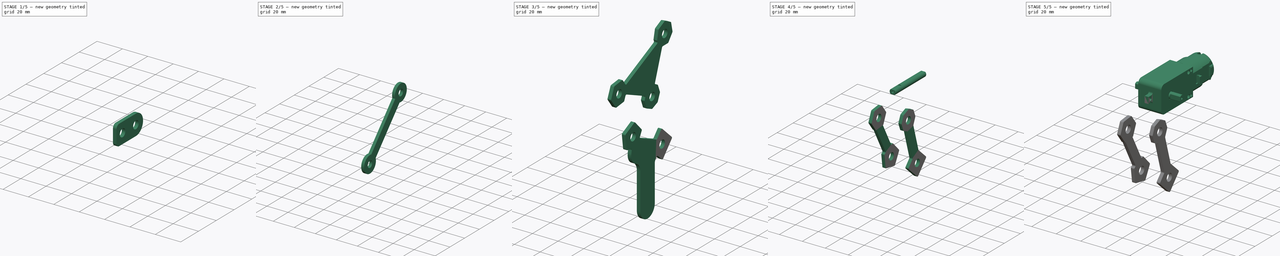
[diagram: build sequence overview — one tinted view per stage of 5, left to right]
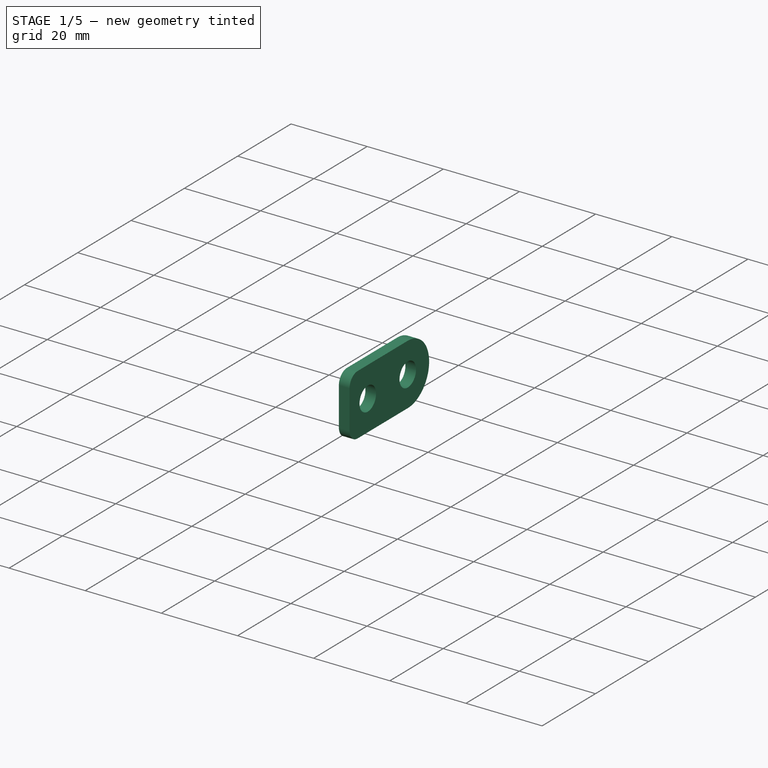
[diagram: stage 1 of 5 — iso view after this stage's code; geometry added in this stage tinted green]
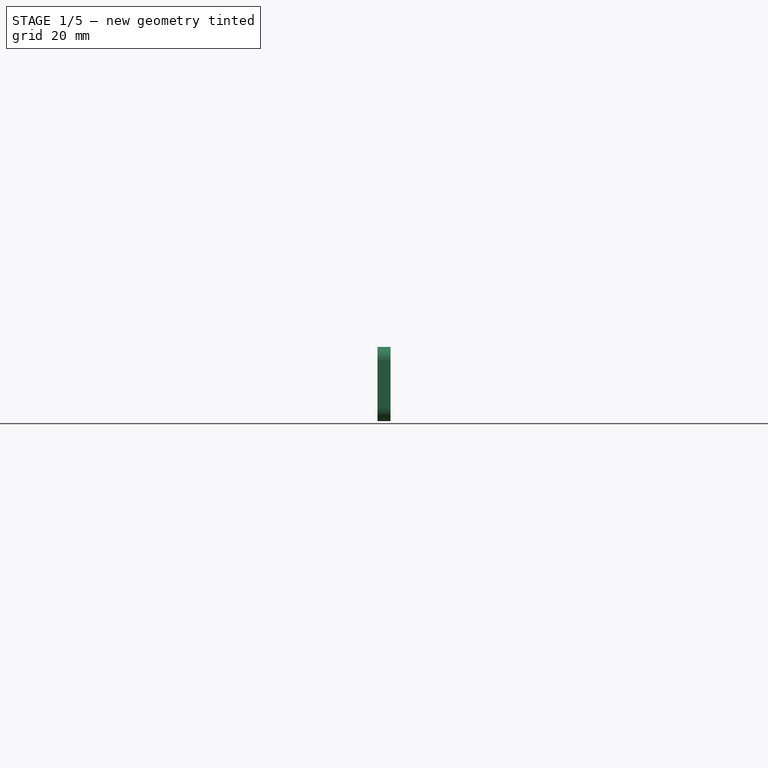
[diagram: stage 1 of 5 — front view after this stage's code; geometry added in this stage tinted green]
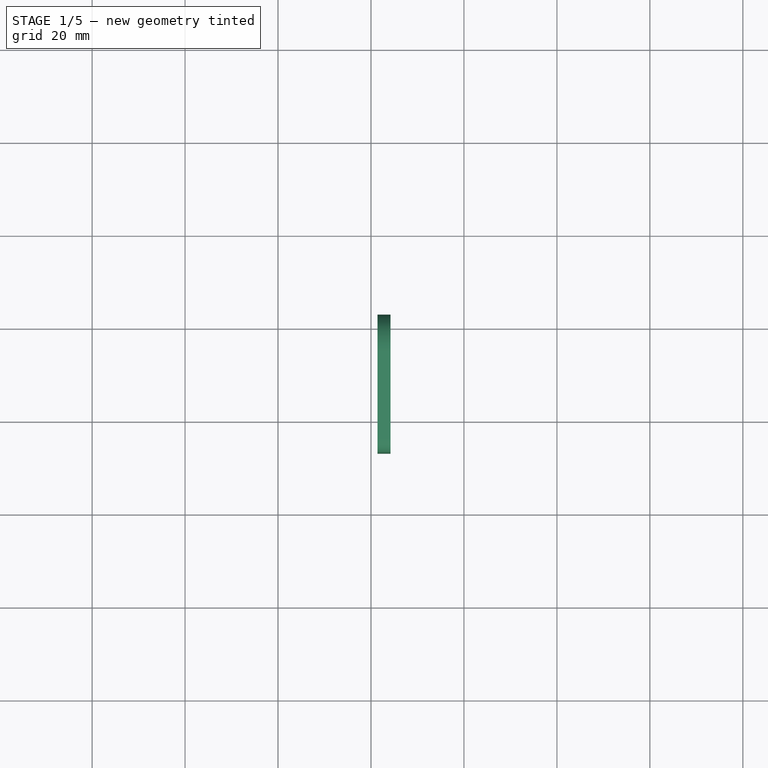
[diagram: stage 1 of 5 — top view after this stage's code; geometry added in this stage tinted green]
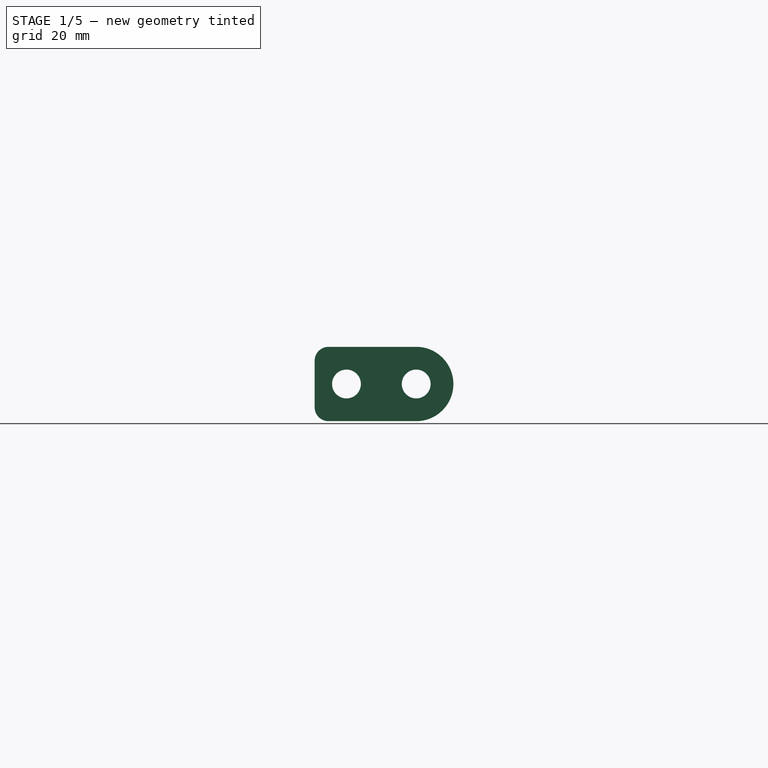
[diagram: stage 1 of 5 — right view after this stage's code; geometry added in this stage tinted green]
FCSTD DOCUMENT  (FreeCAD 0.21R33771 (Git))
Label: theo_jansen_robot_5
License: Other
LicenseURL: https://ohwr.org/project/cernohl/wikis/Documents/CERN-OHL-version-2
objects: Sketcher::SketchObject×17, PartDesign::SubShapeBinder×16, PartDesign::Pad×15, PartDesign::Body×13, PartDesign::Plane×9, PartDesign::Fillet×6, Part::FeaturePython×3, PartDesign::ShapeBinder×3, PartDesign::CoordinateSystem×2, App::DocumentObjectGroup×2, Part::Box×2, Part::Cut×2, Spreadsheet::Sheet×1, Part::Feature×1
note: 110 computed .brp shape members not serialized (recipe doc carries the construction recipe); baked Part::Feature solids carry a one-line shape summary decoded from their .brp

FEATURE [Sketcher::SketchObject] Sketch037
  FullyConstrained = true
  MapMode = 5
  Placement = pos=(0,0,0) rot=(0.57735,0.57735,0.57735;2.0944rad)
  Support = -> [YZ_Plane]
  expr: Constraints[1] = Spreadsheet.spindle_dia
  sketch-geometry (1):
    g0: Circle CenterX=0 CenterY=0 CenterZ=0 NormalX=0 NormalY=0 NormalZ=1 AngleXU=0 Radius=2.55
  constraints (2):
    c: Coincident(g0,g-1)
    c: Diameter(g0) = 5.1
FEATURE [PartDesign::Pad] Pad031
  Direction = (1,-2e-16,3e-16)
  Length = 20.7
  Length2 = 10
  Midplane = true
  Placement = pos=(0,0,0) rot=(1,1,1;2.0944rad)
  Profile = -> Sketch037
  ReferenceAxis = -> Sketch037 [N_Axis]
  Refine = true
  Type = 0
FEATURE [Sketcher::SketchObject] Sketch038
  ExternalGeometry = -> [Pad031]
  FullyConstrained = true
  MapMode = 5
  Placement = pos=(10.35,-4.6e-15,3.4e-15) rot=(0.57735,0.57735,0.57735;2.0944rad)
  Support = -> [Pad031]
  expr: Constraints[19] = Spreadsheet.spindle_flat
  expr: Constraints[22] = -Spreadsheet.angle
  sketch-geometry (8):
    g0: ArcOfCircle CenterX=0 CenterY=0 CenterZ=0 NormalX=0 NormalY=0 NormalZ=1 AngleXU=0 Radius=2.55 StartAngle=0.75905 EndAngle=2.38254
    g1: ArcOfCircle CenterX=0 CenterY=0 CenterZ=0 NormalX=0 NormalY=0 NormalZ=1 AngleXU=0 Radius=2.55 StartAngle=3.90064 EndAngle=5.52414
    g2: LineSegment StartX=-1.85 StartY=1.75499 StartZ=0 EndX=-1.85 EndY=-1.75499 EndZ=0
    g3: LineSegment StartX=1.85 StartY=1.75499 StartZ=0 EndX=1.85 EndY=-1.75499 EndZ=0
    g4: LineSegment StartX=0 StartY=2.55 StartZ=0 EndX=0 EndY=-2.55 EndZ=0
    g5: LineSegment StartX=-1.85 StartY=0 StartZ=0 EndX=0 EndY=0 EndZ=0
    g6: LineSegment StartX=0 StartY=0 StartZ=0 EndX=1.85 EndY=0 EndZ=0
    g7: Circle CenterX=0 CenterY=0 CenterZ=0 NormalX=0 NormalY=0 NormalZ=1 AngleXU=0 Radius=0.95
  constraints (23):
    c: Coincident(g0,g-3)
    c: PointOnObject(g0,g-3)
    c: PointOnObject(g1,g-3)
    c: Coincident(g1,g0)
    c: Coincident(g2,g0)
    c: Coincident(g2,g1)
    c: Coincident(g3,g0)
    c: Coincident(g3,g1)
    c: Parallel(g2,g3)
    c: PointOnObject(g4,g0)
    c: PointOnObject(g5,g2)
    c: Coincident(g6,g5)
    c: PointOnObject(g6,g3)
    c: Perpendicular(g4,g6)
    c: Perpendicular(g5,g4)
    c: Equal(g5,g6)
    c: Symmetric(g4,g4,g5)
    c: Perpendicular(g5,g2)
    c: Coincident(g5,g0)
    c: Distance(g6,g5) = 3.7
    c: Coincident(g7,g0)
    c: Diameter(g7) = 1.9
    c: Angle(g5) = 0
FEATURE [PartDesign::Pad] Pad032
  BaseFeature = -> Pad031
  Direction = (1,-4e-16,4e-16)
  Length = 8.05
  Length2 = 10
  Placement = pos=(0,0,0) rot=(1,1,1;2.0944rad)
  Profile = -> Sketch038
  ReferenceAxis = -> Sketch038 [N_Axis]
  Refine = true
  Type = 0
FEATURE [PartDesign::SubShapeBinder] Binder016
  BindCopyOnChange = 0
  BindMode = 0
  ClaimChildren = false
  Context = -> Body028 [Binder016.]
  Fuse = false
  MakeFace = true
  OffsetFill = false
  OffsetIntersection = false
  OffsetJoinType = 0
  OffsetOpenResult = false
  PartialLoad = false
  Relative = true
  Support = -> [Body027]
  _Version = 2
FEATURE [Sketcher::SketchObject] Sketch039
  FullyConstrained = true
  MapMode = 5
  Placement = pos=(18.4,-2.57e-14,3.6e-15) rot=(0.57735,0.57735,0.57735;2.0944rad)
  Support = -> [Binder016]
  expr: Constraints[12] = Spreadsheet.cam_outer_fillet
  expr: Constraints[20] = Spreadsheet.cam_slot_big
  expr: Constraints[33] = Spreadsheet.cam_slot_sml
  expr: Constraints[37] = Spreadsheet.cam_slot_gap
  expr: Constraints[39] = Spreadsheet.spindle_dia
  expr: Constraints[3] = Spreadsheet.cam_hole
  expr: Constraints[40] = Spreadsheet.spindle_flat
  expr: Constraints[41] = Spreadsheet.spindle_flat - 0.2
  expr: Constraints[4] = Spreadsheet.cam_outer_rad
  expr: Constraints[59] = Spreadsheet.cam_length
  expr: Constraints[60] = Spreadsheet.angle
  sketch-geometry (26):
    g0: ArcOfCircle CenterX=15 CenterY=2.2604e-11 CenterZ=0 NormalX=0 NormalY=0 NormalZ=1 AngleXU=0 Radius=8 StartAngle=4.71239 EndAngle=7.85398
    g1: LineSegment StartX=-3.75 StartY=-8 StartZ=0 EndX=15 EndY=-8 EndZ=0
    g2: LineSegment StartX=15 StartY=8 StartZ=0 EndX=-3.75 EndY=8 EndZ=0
    g3: Circle CenterX=15 CenterY=2.2604e-11 CenterZ=0 NormalX=0 NormalY=0 NormalZ=1 AngleXU=0 Radius=3.1
    g4: LineSegment StartX=-6.75 StartY=5 StartZ=0 EndX=-6.75 EndY=-5 EndZ=0
    g5: ArcOfCircle CenterX=-3.75 CenterY=5 CenterZ=0 NormalX=0 NormalY=0 NormalZ=1 AngleXU=0 Radius=3 StartAngle=1.5708 EndAngle=3.14159
    g6: ArcOfCircle CenterX=-3.75 CenterY=-5 CenterZ=0 NormalX=0 NormalY=0 NormalZ=1 AngleXU=0 Radius=3 StartAngle=3.14159 EndAngle=4.71239
    g7: ArcOfCircle CenterX=-3.75 CenterY=5 CenterZ=0 NormalX=0 NormalY=0 NormalZ=1 AngleXU=0 Radius=0.5 StartAngle=1.315e-13 EndAngle=3.14159
    g8: ArcOfCircle CenterX=-3.75 CenterY=-5 CenterZ=0 NormalX=0 NormalY=0 NormalZ=1 AngleXU=0 Radius=0.5 StartAngle=3.14159 EndAngle=6.28319
    g9: LineSegment StartX=-4.25 StartY=5 StartZ=0 EndX=-4.25 EndY=-5 EndZ=0
    g10: LineSegment StartX=-3.25 StartY=-5 StartZ=0 EndX=-3.25 EndY=5 EndZ=0
    g11: LineSegment StartX=0 StartY=0 StartZ=0 EndX=15 EndY=2.2604e-11 EndZ=0
    g12: LineSegment StartX=-3.75 StartY=5 StartZ=0 EndX=-3.75 EndY=-5 EndZ=0
    g13: LineSegment StartX=-1.75 StartY=5 StartZ=0 EndX=-1.75 EndY=-5 EndZ=0
    g14: LineSegment StartX=-1.75 StartY=5 StartZ=0 EndX=-3.75 EndY=5 EndZ=0
    g15: ArcOfCircle CenterX=-1.65 CenterY=5 CenterZ=0 NormalX=0 NormalY=0 NormalZ=1 AngleXU=0 Radius=0.1 StartAngle=6.875e-13 EndAngle=3.14159
    g16: ArcOfCircle CenterX=-1.65 CenterY=-5 CenterZ=0 NormalX=0 NormalY=0 NormalZ=1 AngleXU=0 Radius=0.1 StartAngle=3.14159 EndAngle=6.28319
    g17: LineSegment StartX=-1.55 StartY=5 StartZ=0 EndX=-1.55 EndY=2.02485 EndZ=0
    g18: LineSegment StartX=-1.55 StartY=-5 StartZ=0 EndX=-1.55 EndY=-2.02485 EndZ=0
    g19: LineSegment StartX=-1.65 StartY=-5 StartZ=0 EndX=-3.75 EndY=-5 EndZ=0
    g20: Circle CenterX=1.4013e-12 CenterY=-7.496e-13 CenterZ=0 NormalX=0 NormalY=0 NormalZ=1 AngleXU=0 Radius=2.55
    g21: Circle CenterX=1.4013e-12 CenterY=-7.496e-13 CenterZ=0 NormalX=0 NormalY=0 NormalZ=1 AngleXU=0 Radius=1.85
    g22: Circle CenterX=1.4013e-12 CenterY=-7.496e-13 CenterZ=0 NormalX=0 NormalY=0 NormalZ=1 AngleXU=0 Radius=1.75
    g23: LineSegment StartX=1.85 StartY=-1.75499 StartZ=0 EndX=1.85 EndY=1.75499 EndZ=0
    g24: ArcOfCircle CenterX=0 CenterY=0 CenterZ=0 NormalX=0 NormalY=0 NormalZ=1 AngleXU=0 Radius=2.55 StartAngle=4.05905 EndAngle=5.52414
    g25: ArcOfCircle CenterX=0 CenterY=0 CenterZ=0 NormalX=0 NormalY=0 NormalZ=1 AngleXU=0 Radius=2.55 StartAngle=0.75905 EndAngle=2.22414
  constraints (62):
    c: Tangent(g1,g0) = -1.5708
    c: Tangent(g0,g2) = -1.5708
    c: Coincident(g3,g0)
    c: Diameter(g3) = 6.2
    c: Radius(g0) = 8
    c: Parallel(g2,g1)
    c: Perpendicular(g4,g1)
    c: Tangent(g1,g6) = -1.5708
    c: Tangent(g6,g4) = -1.5708
    c: Tangent(g5,g4) = -1.5708
    c: Equal(g5,g6)
    c: Tangent(g5,g2) = -1.5708
    c: Radius(g5) = 3
    c: Tangent(g7,g9) = -1.5708
    c: Tangent(g9,g8) = -1.5708
    c: Tangent(g8,g10) = -1.5708
    c: Tangent(g10,g7) = -1.5708
    c: Equal(g7,g8)
    c: Coincident(g7,g5)
    c: Coincident(g8,g6)
    c: Radius(g8) = 0.5
    c: Coincident(g12,g5)
    c: Coincident(g12,g6)
    c: Parallel(g13,g10)
    c: Coincident(g14,g13)
    c: Coincident(g14,g5)
    c: Perpendicular(g12,g14)
    c: Tangent(g15,g13) = -1.5708
    c: Tangent(g18,g16) = -1.5708
    c: Tangent(g17,g15) = 1.5708
    c: Parallel(g17,g13)
    c: Parallel(g18,g13)
    c: Equal(g16,g15)
    c: Radius(g16) = 0.1
    c: Coincident(g19,g16)
    c: Coincident(g6,g19)
    c: Perpendicular(g12,g19)
    c: Distance(g14) = 2
    c: Tangent(g13,g16) = -1.5708
    c: Diameter(g20) = 5.1
    c: Diameter(g21) = 3.7
    c: Diameter(g22) = 3.5
    c: Tangent(g13,g22)
    c: PointOnObject(g18,g20)
    c: PointOnObject(g17,g20)
    c: PointOnObject(g23,g20)
    c: PointOnObject(g23,g20)
    c: Tangent(g23,g21)
    c: Parallel(g23,g13)
    c: Coincident(g23,g25)
    c: Coincident(g25,g17)
    c: Coincident(g24,g23)
    c: Coincident(g24,g18)
    c: Coincident(g24,g25)
    c: Coincident(g20,g21)
    c: Coincident(g20,g22)
    c: Coincident(g11,g24)
    c: Coincident(g11,g0)
    c: Equal(g17,g18)
    c: Distance(g11) = 15
    c: Angle(g11) = 0
    c: Coincident(g24,g-1)
FEATURE [Spreadsheet::Sheet] Spreadsheet
  cells = A1='acrylic_thick; B1(acrylic_thick)==4.9 mm; A2='acrylic_thin; B2(acrylic_thin)=2.8; A3='cam_length; B3(cam_length)=15; A4='angle; B4(angle)=0; A5='clearance; B5(clearance)=0.1; A6='cam_hole; B6(cam_hole)=6.2; A7='cam_outer_rad; B7(cam_outer_rad)=8; A8='cam_outer_fillet; B8(cam_outer_fillet)=3; A9='cam_slot_big; B9(cam_slot_big)=0.5; A10='cam_slot_small; B10(cam_slot_sml)=0.1; A11='cam_slot_gap; B11(cam_slot_gap)==2 mm; A12='spindle_dia; B12(spindle_dia)=5.1; A13='spindle_flat; B13(spindle_flat)=3.7
FEATURE [PartDesign::Pad] Pad033
  Direction = (1,-1.2e-15,1e-16)
  Length = 2.8
  Length2 = 10
  Profile = -> Sketch039
  ReferenceAxis = -> Sketch039 [N_Axis]
  Reversed = true
  Type = 0
  expr: Length = Spreadsheet.acrylic_thin
FEATURE [PartDesign::SubShapeBinder] Binder017
  BindCopyOnChange = 0
  BindMode = 0
  ClaimChildren = false
  Context = -> Body [Binder017.]
  Fuse = false
  MakeFace = true
  OffsetFill = false
  OffsetIntersection = false
  OffsetJoinType = 0
  OffsetOpenResult = false
  PartialLoad = false
  Relative = true
  Support = -> [Body028[Pad033.]]
  _Version = 2
FEATURE [PartDesign::Plane] DatumPlane
  AttachmentOffset = pos=(0,0,0.1) rot=(0,0,1;0rad)
  Length = 60
  MapMode = 5
  Placement = pos=(18.5,-2.01e-14,2.1e-15) rot=(0.57735,0.57735,0.57735;2.0944rad)
  ResizeMode = 0
  Support = -> [Binder017]
  Width = 60
FEATURE [Sketcher::SketchObject] Sketch
  FullyConstrained = true
  MapMode = 5
  Placement = pos=(18.5,-2.01e-14,2.1e-15) rot=(0.57735,0.57735,0.57735;2.0944rad)
  Support = -> [DatumPlane]
  expr: Constraints[11] = Spreadsheet.cam_outer_fillet
  expr: Constraints[12] = Spreadsheet.cam_outer_rad
  expr: Constraints[13] = Spreadsheet.cam_hole
  expr: Constraints[18] = Spreadsheet.cam_length
  expr: Constraints[23] = Spreadsheet.spindle_flat / 2 + 2
  expr: Constraints[24] = Spreadsheet.angle
  sketch-geometry (11):
    g0: LineSegment StartX=-3.85 StartY=8 StartZ=0 EndX=15 EndY=8 EndZ=0
    g1: ArcOfCircle CenterX=15 CenterY=0 CenterZ=0 NormalX=0 NormalY=0 NormalZ=1 AngleXU=0 Radius=8 StartAngle=4.71239 EndAngle=7.85398
    g2: LineSegment StartX=15 StartY=-8 StartZ=0 EndX=-3.85 EndY=-8 EndZ=0
    g3: ArcOfCircle CenterX=-3.85 CenterY=-5 CenterZ=0 NormalX=0 NormalY=0 NormalZ=1 AngleXU=0 Radius=3 StartAngle=3.14159 EndAngle=4.71239
    g4: ArcOfCircle CenterX=-3.85 CenterY=5 CenterZ=0 NormalX=0 NormalY=0 NormalZ=1 AngleXU=0 Radius=3 StartAngle=1.5708 EndAngle=3.14159
    g5: LineSegment StartX=-6.85 StartY=5 StartZ=0 EndX=-6.85 EndY=-5 EndZ=0
    g6: Circle CenterX=15 CenterY=0 CenterZ=0 NormalX=0 NormalY=0 NormalZ=1 AngleXU=0 Radius=3.1
    g7: Circle CenterX=0 CenterY=0 CenterZ=0 NormalX=0 NormalY=0 NormalZ=1 AngleXU=0 Radius=1
    g8: LineSegment StartX=0 StartY=0 StartZ=0 EndX=15 EndY=0 EndZ=0
    g9: LineSegment StartX=-3.85 StartY=5 StartZ=0 EndX=-3.85 EndY=-5 EndZ=0
    g10: LineSegment StartX=-3.85 StartY=3e-16 StartZ=0 EndX=0 EndY=0 EndZ=0
  constraints (25):
    c: Tangent(g0,g1) = 1.5708
    c: Tangent(g2,g3) = 1.5708
    c: Tangent(g4,g0) = 1.5708
    c: Tangent(g1,g2) = 1.5708
    c: Coincident(g6,g1)
    c: Coincident(g7,g-1)
    c: Diameter(g7) = 2
    c: Tangent(g4,g5) = -1.5708
    c: Tangent(g3,g5) = -1.5708
    c: Parallel(g0,g2)
    c: Equal(g4,g3)
    c: Radius(g4) = 3
    c: Radius(g1) = 8
    c: Diameter(g6) = 6.2
    c: Perpendicular(g5,g2)
    c: Coincident(g8,g7)
    c: Coincident(g8,g1)
    c: Parallel(g0,g8)
    c: Distance(g8) = 15
    c: Coincident(g3,g9)
    c: Coincident(g4,g9)
    c: Coincident(g10,g7)
    c: Symmetric(g4,g3,g10)
    c: Distance(g10) = 3.85
    c: Angle(g-1,g8) = 0
FEATURE [PartDesign::Pad] Pad
  Direction = (1,-7e-16,0)
  Length = 2.8
  Length2 = 10
  Placement = pos=(18.5,-2.01e-14,2.1e-15) rot=(0.57735,0.57735,0.57735;2.0944rad)
  Profile = -> Sketch
  ReferenceAxis = -> Sketch [N_Axis]
  Type = 0
  expr: Length = Spreadsheet.acrylic_thin
FEATURE [PartDesign::Body] Body  label="cam_2_right"
  Group = -> [Binder017,DatumPlane,Sketch,Pad]
  Origin = -> Origin034
  Tip = -> Pad
FEATURE [PartDesign::SubShapeBinder] Binder018
  BindCopyOnChange = 0
  BindMode = 0
  ClaimChildren = false
  Context = -> Body029 [Binder018.]
  Fuse = false
  MakeFace = true
  OffsetFill = false
  OffsetIntersection = false
  OffsetJoinType = 0
  OffsetOpenResult = false
  PartialLoad = false
  Relative = true
  Support = -> [Body[Pad.]]
  _Version = 2
FEATURE [PartDesign::Plane] DatumPlane001
  AttachmentOffset = pos=(0,0,0.1) rot=(0,0,1;0rad)
  Length = 60
  MapMode = 5
  Placement = pos=(21.4,-4.9e-15,-2.4e-15) rot=(0.57735,0.57735,0.57735;2.0944rad)
  ResizeMode = 0
  Support = -> [Binder018]
  Width = 60
FEATURE [Sketcher::SketchObject] Sketch040
  FullyConstrained = true
  MapMode = 5
  Placement = pos=(21.4,-4.9e-15,-2.4e-15) rot=(0.57735,0.57735,0.57735;2.0944rad)
  Support = -> [DatumPlane001]
  expr: Constraints[10] = Spreadsheet.cam_outer_rad
  expr: Constraints[11] = Spreadsheet.cam_hole
  expr: Constraints[13] = Spreadsheet.cam_outer_fillet
  expr: Constraints[20] = Spreadsheet.spindle_flat / 2 + 2
  expr: Constraints[23] = Spreadsheet.cam_length
  expr: Constraints[24] = Spreadsheet.angle
  sketch-geometry (11):
    g0: LineSegment StartX=-3.85 StartY=8 StartZ=0 EndX=15 EndY=8 EndZ=0
    g1: ArcOfCircle CenterX=15 CenterY=0 CenterZ=0 NormalX=0 NormalY=0 NormalZ=1 AngleXU=0 Radius=8 StartAngle=4.71239 EndAngle=7.85398
    g2: LineSegment StartX=15 StartY=-8 StartZ=0 EndX=-3.85 EndY=-8 EndZ=0
    g3: ArcOfCircle CenterX=-3.85 CenterY=-5 CenterZ=0 NormalX=0 NormalY=0 NormalZ=1 AngleXU=0 Radius=3 StartAngle=3.14159 EndAngle=4.71239
    g4: LineSegment StartX=-6.85 StartY=-5 StartZ=0 EndX=-6.85 EndY=5 EndZ=0
    g5: ArcOfCircle CenterX=-3.85 CenterY=5 CenterZ=0 NormalX=0 NormalY=0 NormalZ=1 AngleXU=0 Radius=3 StartAngle=1.5708 EndAngle=3.14159
    g6: Circle CenterX=15 CenterY=0 CenterZ=0 NormalX=0 NormalY=0 NormalZ=1 AngleXU=0 Radius=3.1
    g7: Circle CenterX=0 CenterY=0 CenterZ=0 NormalX=0 NormalY=0 NormalZ=1 AngleXU=0 Radius=3.1
    g8: LineSegment StartX=-3.85 StartY=5 StartZ=0 EndX=-3.85 EndY=-5 EndZ=0
    g9: LineSegment StartX=-3.85 StartY=-2e-16 StartZ=0 EndX=0 EndY=0 EndZ=0
    g10: LineSegment StartX=0 StartY=0 StartZ=0 EndX=15 EndY=0 EndZ=0
  constraints (25):
    c: Tangent(g0,g1) = 1.5708
    c: Tangent(g2,g3) = 1.5708
    c: Tangent(g4,g5) = 1.5708
    c: Tangent(g3,g4) = 1.5708
    c: Tangent(g5,g0) = 1.5708
    c: Tangent(g1,g2) = 1.5708
    c: Parallel(g0,g2)
    c: Coincident(g1,g6)
    c: Coincident(g7,g-1)
    c: Equal(g7,g6)
    c: Radius(g1) = 8
    c: Diameter(g6) = 6.2
    c: Equal(g3,g5)
    c: Radius(g3) = 3
    c: Perpendicular(g2,g4)
    c: Coincident(g8,g5)
    c: Coincident(g8,g3)
    c: Symmetric(g3,g5,g9)
    c: Perpendicular(g9,g8)
    c: Coincident(g9,g7)
    c: Distance(g9) = 3.85
    c: Coincident(g7,g10)
    c: Coincident(g10,g1)
    c: Distance(g10) = 15
    c: Angle(g10) = 0
FEATURE [PartDesign::Pad] Pad034
  Direction = (1,1e-16,-1e-16)
  Length = 2.8
  Length2 = 10
  Placement = pos=(21.4,-4.9e-15,-2.4e-15) rot=(0.57735,0.57735,0.57735;2.0944rad)
  Profile = -> Sketch040
  ReferenceAxis = -> Sketch040 [N_Axis]
  Type = 0
  expr: Length = Spreadsheet.acrylic_thin
FEATURE [PartDesign::Plane] DatumPlane007
  AttachmentOffset = pos=(0,0,0.1) rot=(0,0,1;0rad)
  Length = 125.233
  MapMode = 5
  Placement = pos=(27.1,0,3e-15) rot=(0.57735,-0.57735,-0.57735;2.0944rad)
  ResizeMode = 0
  Width = 78.2655
FEATURE [Sketcher::SketchObject] Sketch053
  FullyConstrained = true
  MapMode = 5
  Placement = pos=(-10.35,6.9e-15,-4.6e-15) rot=(-0.57735,-0.57735,0.57735;2.0944rad)
  Support = -> [Pad032]
  expr: Constraints[12] = Spreadsheet.spindle_flat
  expr: Constraints[14] = Spreadsheet.angle
  expr: Constraints[9] = Spreadsheet.spindle_dia
  sketch-geometry (6):
    g0: LineSegment StartX=-1.85 StartY=1.75499 StartZ=0 EndX=-1.85 EndY=-1.75499 EndZ=0
    g1: ArcOfCircle CenterX=0 CenterY=0 CenterZ=0 NormalX=0 NormalY=0 NormalZ=1 AngleXU=0 Radius=2.55 StartAngle=3.90064 EndAngle=5.52414
    g2: LineSegment StartX=1.85 StartY=-1.75499 StartZ=0 EndX=1.85 EndY=1.75499 EndZ=0
    g3: ArcOfCircle CenterX=0 CenterY=0 CenterZ=0 NormalX=0 NormalY=0 NormalZ=1 AngleXU=0 Radius=2.55 StartAngle=0.75905 EndAngle=2.38254
    g4: LineSegment StartX=-1.85 StartY=-2.93658e-11 StartZ=0 EndX=1.85 EndY=2.10081e-11 EndZ=0
    g5: Circle CenterX=0 CenterY=0 CenterZ=0 NormalX=0 NormalY=0 NormalZ=1 AngleXU=0 Radius=0.95
  constraints (17):
    c: Coincident(g1,g2)
    c: Coincident(g3,g0)
    c: Coincident(g0,g1)
    c: Coincident(g3,g1)
    c: Coincident(g3,g-1)
    c: Coincident(g2,g3)
    c: Parallel(g2,g0)
    c: Equal(g0,g2)
    c: Equal(g1,g3)
    c: Diameter(g1) = 5.1
    c: PointOnObject(g4,g2)
    c: Perpendicular(g0,g4)
    c: Distance(g4) = 3.7
    c: Symmetric(g0,g0,g4)
    c: Angle(g4) = 0
    c: Coincident(g5,g1)
    c: Diameter(g5) = 1.9
FEATURE [PartDesign::Pad] Pad045
  BaseFeature = -> Pad032
  Direction = (-1,6e-16,-5e-16)
  Length = 8.05
  Length2 = 10
  Placement = pos=(0,0,0) rot=(1,1,1;2.0944rad)
  Profile = -> Sketch053
  ReferenceAxis = -> Sketch053 [N_Axis]
  Type = 0
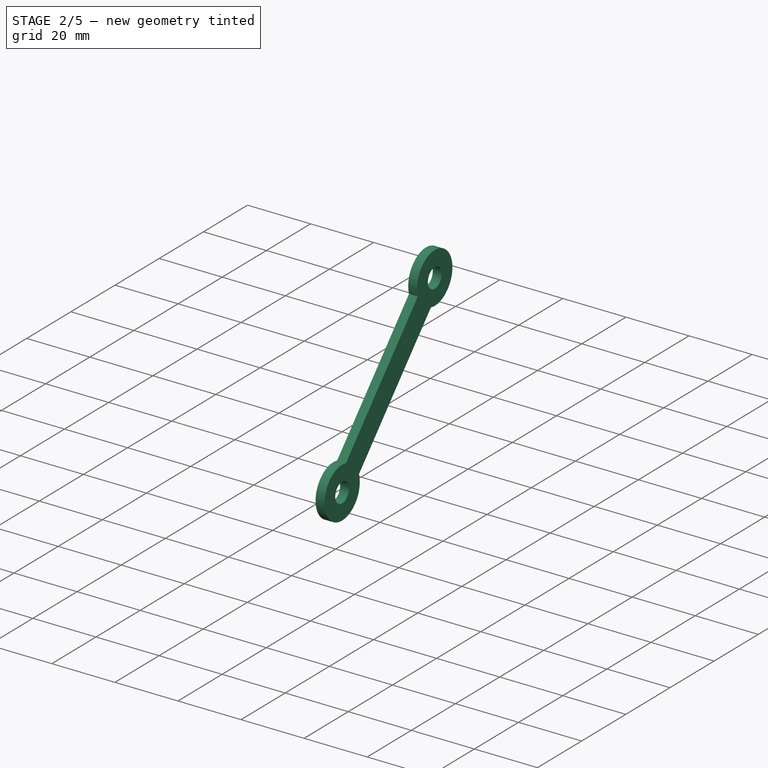
[diagram: stage 2 of 5 — iso view after this stage's code; geometry added in this stage tinted green]
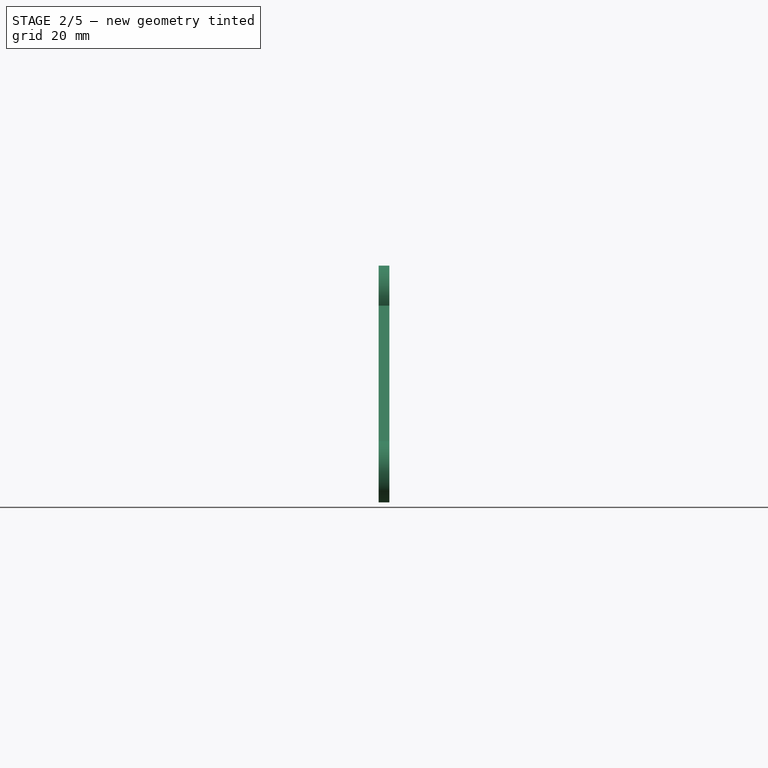
[diagram: stage 2 of 5 — front view after this stage's code; geometry added in this stage tinted green]
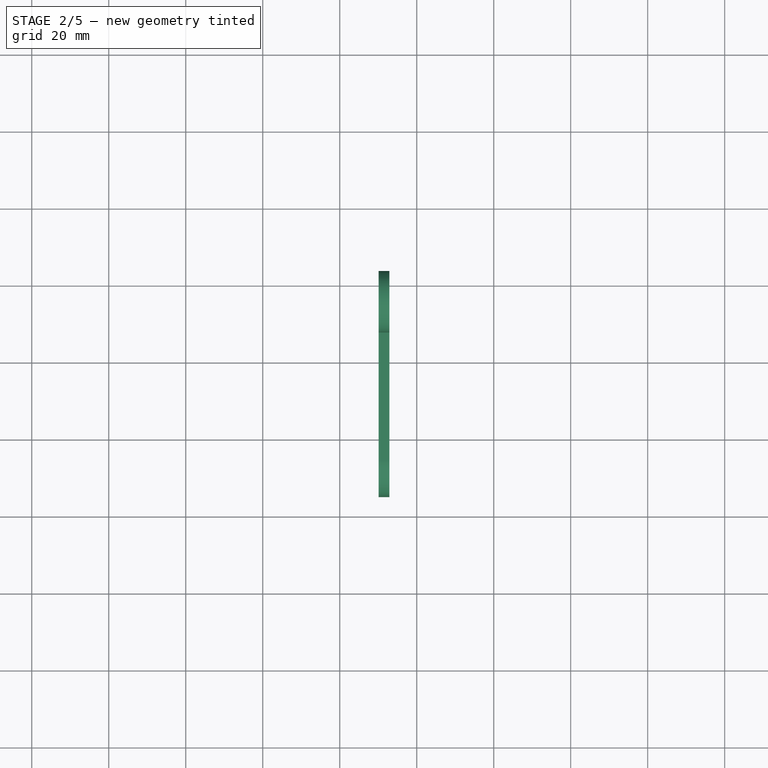
[diagram: stage 2 of 5 — top view after this stage's code; geometry added in this stage tinted green]
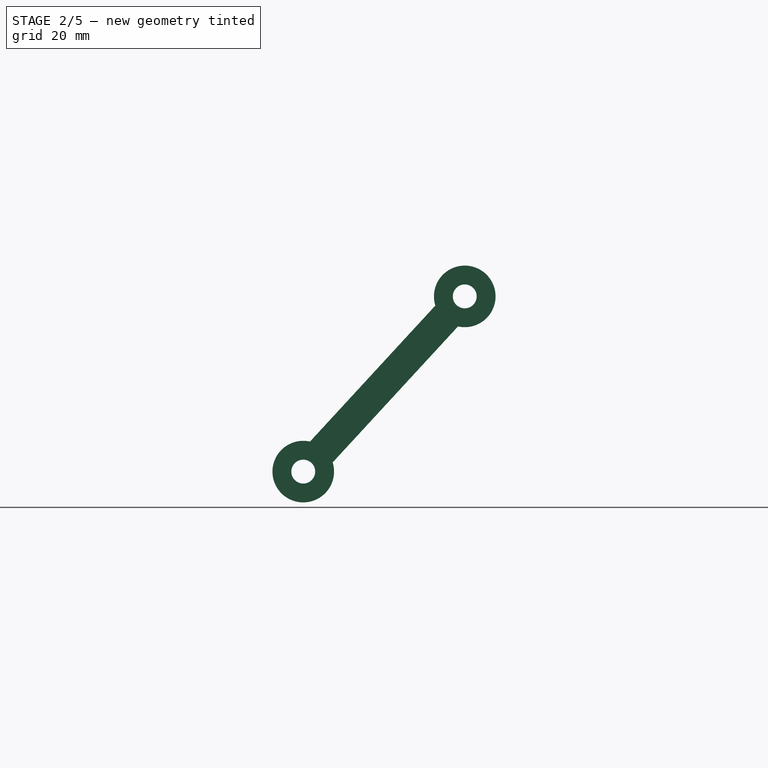
[diagram: stage 2 of 5 — right view after this stage's code; geometry added in this stage tinted green]
FEATURE [PartDesign::Body] Body029  label="cam_3_right"
  Group = -> [Binder018,DatumPlane001,Sketch040,Pad034]
  Origin = -> Origin035
  Tip = -> Pad034
FEATURE [Sketcher::SketchObject] Sketch041
  FullyConstrained = true
  MapMode = 5
  Placement = pos=(0,0,0) rot=(0.57735,0.57735,0.57735;2.0944rad)
  Support = -> [YZ_Plane033]
  expr: Constraints[35] = Spreadsheet.angle + 180
  sketch-geometry (14):
    g0: Circle CenterX=0 CenterY=0 CenterZ=0 NormalX=0 NormalY=0 NormalZ=1 AngleXU=0 Radius=15
    g1: LineSegment StartX=-15 StartY=1.8e-15 StartZ=0 EndX=-54.9339 EndY=30.0879 EndZ=0
    g2: LineSegment StartX=-54.9339 StartY=30.0879 StartZ=0 EndX=-75.5971 EndY=-21.7453 EndZ=0
    g3: LineSegment StartX=-75.5971 StartY=-21.7453 StartZ=0 EndX=-38 EndY=-7.8 EndZ=0
    g4: LineSegment StartX=-38 StartY=-7.8 StartZ=0 EndX=-54.9339 EndY=30.0879 EndZ=0
    g5: LineSegment StartX=-75.5971 StartY=-21.7453 StartZ=0 EndX=-96.7601 EndY=-54.9791 EndZ=0
    g6: LineSegment StartX=-38 StartY=-7.8 StartZ=0 EndX=-65.3151 EndY=-36.0556 EndZ=0
    g7: LineSegment StartX=-15 StartY=1.8e-15 StartZ=0 EndX=-65.3151 EndY=-36.0556 EndZ=0
    g8: LineSegment StartX=-38 StartY=-7.8 StartZ=0 EndX=0 EndY=-7.8 EndZ=0
    g9: LineSegment StartX=0 StartY=0 StartZ=0 EndX=-15 EndY=1.8e-15 EndZ=0
    g10: LineSegment StartX=-38 StartY=-7.8 StartZ=0 EndX=0 EndY=0 EndZ=0
    g11: LineSegment StartX=-96.7601 StartY=-54.9791 StartZ=0 EndX=-65.3151 EndY=-36.0556 EndZ=0
    g12: LineSegment StartX=-96.7601 StartY=-54.9791 StartZ=0 EndX=-33.7297 EndY=-73.5171 EndZ=0
    g13: LineSegment StartX=-65.3151 StartY=-36.0556 StartZ=0 EndX=-33.7297 EndY=-73.5171 EndZ=0
  constraints (36):
    c: Coincident(g0,g-1)
    c: Coincident(g2,g1)
    c: Coincident(g3,g2)
    c: Coincident(g4,g3)
    c: Coincident(g4,g1)
    c: Coincident(g5,g2)
    c: Coincident(g6,g3)
    c: Coincident(g7,g1)
    c: Coincident(g7,g6)
    c: Distance(g1) = 50
    c: Distance(g7) = 61.9
    c: Distance(g2) = 55.8
    c: Distance(g4) = 41.5
    c: Distance(g3) = 40.1
    c: Distance(g5) = 39.4
    c: Distance(g6) = 39.3
    c: Coincident(g8,g3)
    c: PointOnObject(g8,g-2)
    c: Horizontal(g8)
    c: Distance(g8,g0) = 7.8
    c: PointOnObject(g1,g0)
    c: Coincident(g9,g0)
    c: Coincident(g9,g1)
    c: Coincident(g10,g3)
    c: Coincident(g10,g0)
    c: Coincident(g11,g5)
    c: Coincident(g11,g6)
    c: Distance(g11) = 36.7
    c: Coincident(g12,g5)
    c: Distance(g12) = 65.7
    c: Coincident(g13,g6)
    c: Coincident(g13,g12)
    c: Distance(g13) = 49
    c: DistanceX(g8,g8) = 38
    c: Radius(g0) = 15
    c: Angle(g9) = 3.14159
FEATURE [PartDesign::CoordinateSystem] Local_CS053
  AttacherType = Attacher::AttachEngine3D
  MapMode = 7
  Placement = pos=(0,0,0) rot=(0,0.707107,0.707107;3.14159rad)
  Support = -> [Sketch041]
FEATURE [PartDesign::Body] Body030  label="linkage_left"
  Group = -> [Sketch041,Local_CS053]
  Origin = -> Origin036
FEATURE [Sketcher::SketchObject] Sketch042
  FullyConstrained = true
  MapMode = 5
  Placement = pos=(0,0,0) rot=(0.57735,0.57735,0.57735;2.0944rad)
  Support = -> [YZ_Plane033]
  expr: Constraints[35] = Spreadsheet.angle
  sketch-geometry (14):
    g0: Circle CenterX=0 CenterY=-9e-16 CenterZ=0 NormalX=0 NormalY=0 NormalZ=1 AngleXU=0 Radius=15
    g1: LineSegment StartX=15 StartY=0 StartZ=0 EndX=-24.0135 EndY=31.2721 EndZ=0
    g2: LineSegment StartX=-24.0135 StartY=31.2721 StartZ=0 EndX=-74.7944 EndY=8.14317 EndZ=0
    g3: LineSegment StartX=-74.7944 StartY=8.14317 StartZ=0 EndX=-38 EndY=-7.8 EndZ=0
    g4: LineSegment StartX=-38 StartY=-7.8 StartZ=0 EndX=-24.0135 EndY=31.2721 EndZ=0
    g5: LineSegment StartX=-74.7944 StartY=8.14317 StartZ=0 EndX=-59.2315 EndY=-28.0529 EndZ=0
    g6: LineSegment StartX=-38 StartY=-7.8 StartZ=0 EndX=-26.9521 EndY=-45.5152 EndZ=0
    g7: LineSegment StartX=15 StartY=0 StartZ=0 EndX=-26.9521 EndY=-45.5152 EndZ=0
    g8: LineSegment StartX=-38 StartY=-7.8 StartZ=0 EndX=0 EndY=-7.8 EndZ=0
    g9: LineSegment StartX=0 StartY=-9e-16 StartZ=0 EndX=15 EndY=0 EndZ=0
    g10: LineSegment StartX=-38 StartY=-7.8 StartZ=0 EndX=0 EndY=-9e-16 EndZ=0
    g11: LineSegment StartX=-59.2315 StartY=-28.0529 StartZ=0 EndX=-26.9521 EndY=-45.5152 EndZ=0
    g12: LineSegment StartX=-59.2315 StartY=-28.0529 StartZ=0 EndX=-43.1601 EndY=-91.7569 EndZ=0
    g13: LineSegment StartX=-26.9521 StartY=-45.5152 StartZ=0 EndX=-43.1601 EndY=-91.7569 EndZ=0
  constraints (36):
    c: Coincident(g0,g-1)
    c: Coincident(g2,g1)
    c: Coincident(g3,g2)
    c: Coincident(g4,g3)
    c: Coincident(g4,g1)
    c: Coincident(g5,g2)
    c: Coincident(g6,g3)
    c: Coincident(g7,g1)
    c: Coincident(g7,g6)
    c: Distance(g1) = 50
    c: Distance(g7) = 61.9
    c: Distance(g2) = 55.8
    c: Distance(g4) = 41.5
    c: Distance(g3) = 40.1
    c: Distance(g5) = 39.4
    c: Distance(g6) = 39.3
    c: Coincident(g8,g3)
    c: PointOnObject(g8,g-2)
    c: Horizontal(g8)
    c: Distance(g8,g0) = 7.8
    c: PointOnObject(g1,g0)
    c: Coincident(g9,g0)
    c: Coincident(g9,g1)
    c: Coincident(g10,g3)
    c: Coincident(g10,g0)
    c: Coincident(g11,g5)
    c: Coincident(g11,g6)
    c: Distance(g11) = 36.7
    c: Coincident(g12,g5)
    c: Distance(g12) = 65.7
    c: Coincident(g13,g6)
    c: Coincident(g13,g12)
    c: Distance(g13) = 49
    c: DistanceX(g8,g8) = 38
    c: Radius(g0) = 15
    c: Angle(g9) = 0
FEATURE [PartDesign::CoordinateSystem] Local_CS047
  AttacherType = Attacher::AttachEngine3D
  MapMode = 7
  Placement = pos=(0,0,-9e-16) rot=(1,0,0;1.5708rad)
  Support = -> [Sketch042]
FEATURE [PartDesign::Body] Body025  label="linkage_right"
  Group = -> [Sketch042,Local_CS047]
  Origin = -> Origin031
FEATURE [App::DocumentObjectGroup] Group  label="linkage_wireframes"
  Group = -> [Body030,Body025]
FEATURE [PartDesign::SubShapeBinder] Binder019
  BindCopyOnChange = 0
  BindMode = 0
  ClaimChildren = false
  Context = -> Body031 [Binder019.]
  Fuse = false
  MakeFace = true
  OffsetFill = false
  OffsetIntersection = false
  OffsetJoinType = 0
  OffsetOpenResult = false
  PartialLoad = false
  Relative = true
  Support = -> [Body025[Sketch042.]]
  _Version = 2
FEATURE [PartDesign::SubShapeBinder] Binder020
  BindCopyOnChange = 0
  BindMode = 0
  ClaimChildren = false
  Context = -> Body031 [Binder020.]
  Fuse = false
  MakeFace = true
  OffsetFill = false
  OffsetIntersection = false
  OffsetJoinType = 0
  OffsetOpenResult = false
  PartialLoad = false
  Relative = true
  Support = -> [Body029[Pad034.]]
  _Version = 2
FEATURE [PartDesign::Plane] DatumPlane002
  AttachmentOffset = pos=(0,0,0.1) rot=(0,0,1;0rad)
  Length = 69.8332
  MapMode = 5
  Placement = pos=(24.3,2e-15,3e-16) rot=(0.57735,0.57735,0.57735;2.0944rad)
  ResizeMode = 0
  Support = -> [Binder020]
  Width = 77.2822
FEATURE [Sketcher::SketchObject] Sketch043
  ExternalGeometry = -> [Binder019]
  FullyConstrained = true
  MapMode = 5
  Placement = pos=(24.3,2e-15,3e-16) rot=(0.57735,0.57735,0.57735;2.0944rad)
  Support = -> [DatumPlane002]
  expr: Constraints[10] = Spreadsheet.cam_outer_rad * 2
  expr: Constraints[21] = Spreadsheet.cam_hole
  sketch-geometry (8):
    g0: Circle CenterX=15 CenterY=-3.6e-15 CenterZ=0 NormalX=0 NormalY=0 NormalZ=1 AngleXU=0 Radius=3.1
    g1: Circle CenterX=-24.0135 CenterY=31.2721 CenterZ=0 NormalX=0 NormalY=0 NormalZ=1 AngleXU=0 Radius=3.1
    g2: ArcOfCircle CenterX=15 CenterY=-3.6e-15 CenterZ=0 NormalX=0 NormalY=0 NormalZ=1 AngleXU=0 Radius=8 StartAngle=2.98949 EndAngle=8.22548
    g3: ArcOfCircle CenterX=-24.0135 CenterY=31.2721 CenterZ=0 NormalX=0 NormalY=0 NormalZ=1 AngleXU=0 Radius=8 StartAngle=6.13109 EndAngle=11.3671
    g4: LineSegment StartX=12.0959 StartY=7.45427 StartZ=0 EndX=-16.1059 EndY=30.06 EndZ=0
    g5: LineSegment StartX=-7.00854 StartY=12.515 StartZ=0 EndX=-4.50677 EndY=15.636 EndZ=0
    g6: LineSegment StartX=-4.50677 StartY=15.636 StartZ=0 EndX=-2.005 EndY=18.7571 EndZ=0
    g7: LineSegment StartX=7.09236 StartY=1.21211 StartZ=0 EndX=-21.1094 EndY=23.8178 EndZ=0
  constraints (22):
    c: Coincident(g0,g-3)
    c: Equal(g1,g0)
    c: Equal(g2,g3)
    c: Coincident(g2,g0)
    c: Coincident(g2,g4)
    c: Coincident(g3,g4)
    c: Coincident(g6,g5)
    c: Perpendicular(g4,g6)
    c: Symmetric(g0,g1,g5)
    c: Equal(g5,g6)
    c: Diameter(g2) = 16
    c: Parallel(g5,g6)
    c: Distance(g5,g6) = 8
    c: Coincident(g7,g2)
    c: Coincident(g7,g3)
    c: PointOnObject(g5,g7)
    c: Coincident(g3,g1)
    c: Perpendicular(g7,g5)
    c: Coincident(g1,g-4)
    c: PointOnObject(g6,g4)
    c: Parallel(g-4,g4)
    c: Diameter(g0) = 6.2
FEATURE [PartDesign::Pad] Pad035
  Direction = (1,0,0)
  Length = 2.8
  Length2 = 10
  Placement = pos=(24.3,2e-15,3e-16) rot=(0.57735,0.57735,0.57735;2.0944rad)
  Profile = -> Sketch043
  ReferenceAxis = -> Sketch043 [N_Axis]
  Type = 0
  expr: Length = Spreadsheet.acrylic_thin
FEATURE [Sketcher::SketchObject] Sketch044
  ExternalGeometry = -> [Pad035,Binder019]
  FullyConstrained = true
  MapMode = 5
  Placement = pos=(27.1,2e-15,6e-16) rot=(0.57735,0.57735,0.57735;2.0944rad)
  Support = -> [Pad035]
  sketch-geometry (10):
    g0: LineSegment StartX=-30.9418 StartY=36.8256 StartZ=0 EndX=-32.6752 EndY=29.3179 EndZ=0
    g1: LineSegment StartX=-32.6752 StartY=29.3179 StartZ=0 EndX=-27.8861 EndY=23.2818 EndZ=0
    g2: LineSegment StartX=-27.8861 StartY=23.2818 StartZ=0 EndX=-20.1809 EndY=23.2625 EndZ=0
    g3: LineSegment StartX=-20.1809 StartY=23.2625 StartZ=0 EndX=-15.3618 EndY=29.2746 EndZ=0
    g4: LineSegment StartX=-15.3618 StartY=29.2746 StartZ=0 EndX=-17.0576 EndY=36.7909 EndZ=0
    g5: LineSegment StartX=-17.0576 StartY=36.7909 StartZ=0 EndX=-23.9913 EndY=40.1514 EndZ=0
    g6: LineSegment StartX=-23.9913 StartY=40.1514 StartZ=0 EndX=-30.9418 EndY=36.8256 EndZ=0
    g7: Circle CenterX=-24.0135 CenterY=31.2721 CenterZ=0 NormalX=0 NormalY=0 NormalZ=1 AngleXU=0 Radius=8.87933
    g8: LineSegment StartX=-24.0135 StartY=31.2721 StartZ=0 EndX=-17.7714 EndY=26.2686 EndZ=0
    g9: Circle CenterX=-24.0135 CenterY=31.2721 CenterZ=0 NormalX=0 NormalY=0 NormalZ=1 AngleXU=0 Radius=3.1
  constraints (23):
    c: Coincident(g0,g1)
    c: Coincident(g1,g2)
    c: Coincident(g2,g3)
    c: Coincident(g3,g4)
    c: Coincident(g4,g5)
    c: Coincident(g5,g6)
    c: Coincident(g6,g0)
    c: Equal(g0, g1-g6) x6
    c: PointOnObject(g0,g7)
    c: PointOnObject(g1,g7)
    c: PointOnObject(g2,g7)
    c: PointOnObject(g3,g7)
    c: PointOnObject(g4,g7)
    c: PointOnObject(g5,g7)
    c: PointOnObject(g6,g7)
    c: Coincident(g7,g-3)
    c: Tangent(g2,g-3)
    c: Coincident(g8,g7)
    c: PointOnObject(g8,g3)
    c: Perpendicular(g8,g3)
    c: Parallel(g8,g-4)
    c: Coincident(g9,g7)
    c: Equal(g9,g-5)
FEATURE [PartDesign::Pad] Pad036
  BaseFeature = -> Pad035
  Direction = (1,0,0)
  Length = 2.8
  Length2 = 10
  Placement = pos=(24.3,2e-15,3e-16) rot=(0.57735,0.57735,0.57735;2.0944rad)
  Profile = -> Sketch044
  ReferenceAxis = -> Sketch044 [N_Axis]
  Refine = true
  Reversed = true
  Type = 0
  expr: Length = Spreadsheet.acrylic_thin
FEATURE [PartDesign::SubShapeBinder] Binder021
  BindCopyOnChange = 0
  BindMode = 0
  ClaimChildren = false
  Context = -> Body032 [Binder021.]
  Fuse = false
  MakeFace = true
  OffsetFill = false
  OffsetIntersection = false
  OffsetJoinType = 0
  OffsetOpenResult = false
  PartialLoad = false
  Relative = true
  Support = -> [Body031[Pad035.]]
  _Version = 2
FEATURE [PartDesign::Plane] DatumPlane003
  AttachmentOffset = pos=(0,0,0.1) rot=(0,0,1;0rad)
  Length = 60
  MapMode = 5
  Placement = pos=(27.2,0,3e-15) rot=(0.57735,0.57735,0.57735;2.0944rad)
  ResizeMode = 0
  Support = -> [Binder021]
  Width = 60
FEATURE [Sketcher::SketchObject] Sketch045
  ExternalGeometry = -> [Binder021]
  FullyConstrained = true
  MapMode = 5
  Placement = pos=(27.2,0,3e-15) rot=(0.57735,0.57735,0.57735;2.0944rad)
  Support = -> [DatumPlane003]
  sketch-geometry (2):
    g0: Circle CenterX=15 CenterY=-7.1e-15 CenterZ=0 NormalX=0 NormalY=0 NormalZ=1 AngleXU=0 Radius=8
    g1: Circle CenterX=15 CenterY=-7.1e-15 CenterZ=0 NormalX=0 NormalY=0 NormalZ=1 AngleXU=0 Radius=3.1
  constraints (4):
    c: Coincident(g1,g0)
    c: Coincident(g0,g-4)
    c: Equal(g0,g-3)
    c: Equal(g1,g-4)
FEATURE [PartDesign::SubShapeBinder] Binder022
  BindCopyOnChange = 0
  BindMode = 0
  ClaimChildren = false
  Context = -> Body032 [Binder022.]
  Fuse = false
  MakeFace = true
  OffsetFill = false
  OffsetIntersection = false
  OffsetJoinType = 0
  OffsetOpenResult = false
  PartialLoad = false
  Relative = true
  Support = -> [Body025[Sketch042.]]
  _Version = 2
FEATURE [PartDesign::Pad] Pad037
  Direction = (1,0,0)
  Length = 2.8
  Length2 = 10
  Placement = pos=(27.2,0,3e-15) rot=(0.57735,0.57735,0.57735;2.0944rad)
  Profile = -> Sketch045
  ReferenceAxis = -> Sketch045 [N_Axis]
  Type = 0
  expr: Length = Spreadsheet.acrylic_thin
FEATURE [PartDesign::Body] Body032  label="spacer_right"
  Group = -> [Binder021,DatumPlane003,Sketch045,Binder022,Pad037]
  Origin = -> Origin038
  Tip = -> Pad037
FEATURE [PartDesign::SubShapeBinder] Binder023
  BindCopyOnChange = 0
  BindMode = 0
  ClaimChildren = false
  Context = -> Body033 [Binder023.]
  Fuse = false
  MakeFace = true
  OffsetFill = false
  OffsetIntersection = false
  OffsetJoinType = 0
  OffsetOpenResult = false
  PartialLoad = false
  Relative = true
  Support = -> [Body025[Sketch042.]]
  _Version = 2
FEATURE [PartDesign::SubShapeBinder] Binder024
  BindCopyOnChange = 0
  BindMode = 0
  ClaimChildren = false
  Context = -> Body033 [Binder024.]
  Fuse = false
  MakeFace = true
  OffsetFill = false
  OffsetIntersection = false
  OffsetJoinType = 0
  OffsetOpenResult = false
  PartialLoad = false
  Relative = true
  Support = -> [Body032]
  _Version = 2
FEATURE [PartDesign::Plane] DatumPlane004
  AttachmentOffset = pos=(0,0,0.1) rot=(0,0,1;0rad)
  Length = 77.1454
  MapMode = 5
  Placement = pos=(30.1,3.3e-15,6.7e-15) rot=(0.57735,0.57735,0.57735;2.0944rad)
  ResizeMode = 0
  Support = -> [Binder024]
  Width = 95.7084
FEATURE [Sketcher::SketchObject] Sketch047
  ExternalGeometry = -> [Binder023]
  FullyConstrained = false
  MapMode = 5
  Placement = pos=(30.1,3.3e-15,6.7e-15) rot=(0.57735,0.57735,0.57735;2.0944rad)
  Support = -> [DatumPlane004]
  sketch-geometry (8):
    g0: Circle CenterX=-26.9521 CenterY=-45.5152 CenterZ=0 NormalX=0 NormalY=0 NormalZ=1 AngleXU=0 Radius=3.1
    g1: Circle CenterX=15 CenterY=-4.29e-14 CenterZ=0 NormalX=0 NormalY=0 NormalZ=1 AngleXU=0 Radius=3.1
    g2: ArcOfCircle CenterX=-26.9521 CenterY=-45.5152 CenterZ=0 NormalX=0 NormalY=0 NormalZ=1 AngleXU=0 Radius=8 StartAngle=1.34971 EndAngle=6.5857
    g3: ArcOfCircle CenterX=15 CenterY=-4.29e-14 CenterZ=0 NormalX=0 NormalY=0 NormalZ=1 AngleXU=0 Radius=8 StartAngle=4.4913 EndAngle=9.72729
    g4: LineSegment StartX=13.2457 StartY=-7.80528 StartZ=0 EndX=-19.3154 EndY=-43.1318 EndZ=0
    g5: LineSegment StartX=-25.1978 StartY=-37.7099 StartZ=0 EndX=7.36327 EndY=-2.38336 EndZ=0
    g6: LineSegment StartX=-5.97605 StartY=-22.7576 StartZ=0 EndX=-8.91726 EndY=-20.0466 EndZ=0
    g7: LineSegment StartX=-5.97605 StartY=-22.7576 StartZ=0 EndX=-3.03485 EndY=-25.4685 EndZ=0
  constraints (17):
    c: Equal(g1,g0)
    c: Coincident(g2,g0)
    c: Coincident(g3,g1)
    c: Equal(g3,g2)
    c: Coincident(g5,g2)
    c: Coincident(g5,g3)
    c: PointOnObject(g6,g5)
    c: Coincident(g7,g6)
    c: PointOnObject(g7,g4)
    c: Equal(g6,g7)
    c: Coincident(g2,g4)
    c: Coincident(g4,g3)
    c: Distance(g6,g7) = 8
    c: Symmetric(g0,g1,g6)
    c: Equal(g5,g4)
    c: Perpendicular(g5,g6)
    c: Perpendicular(g4,g7)
FEATURE [PartDesign::Pad] Pad039
  Direction = (1,2e-16,2e-16)
  Length = 2.8
  Length2 = 10
  Placement = pos=(30.1,3.3e-15,6.7e-15) rot=(0.57735,0.57735,0.57735;2.0944rad)
  Profile = -> Sketch047
  ReferenceAxis = -> Sketch047 [N_Axis]
  Type = 0
  expr: Length = Spreadsheet.acrylic_thin
FEATURE [PartDesign::Body] Body033  label="link_0_4_right"
  Group = -> [Binder023,Binder024,DatumPlane004,Sketch047,Pad039,Sketch048,Pad040,Fillet]
  Origin = -> Origin039
  Tip = -> Fillet
FEATURE [PartDesign::Fillet] Fillet001
  Base = -> Pad036 [Edge9,Edge30,Edge32,Edge33,Edge31,Edge29,Edge6]
  BaseFeature = -> Pad036
  Placement = pos=(24.3,2e-15,3e-16) rot=(0.57735,0.57735,0.57735;2.0944rad)
  Radius = 1
  SupportTransform = false
  UseAllEdges = false
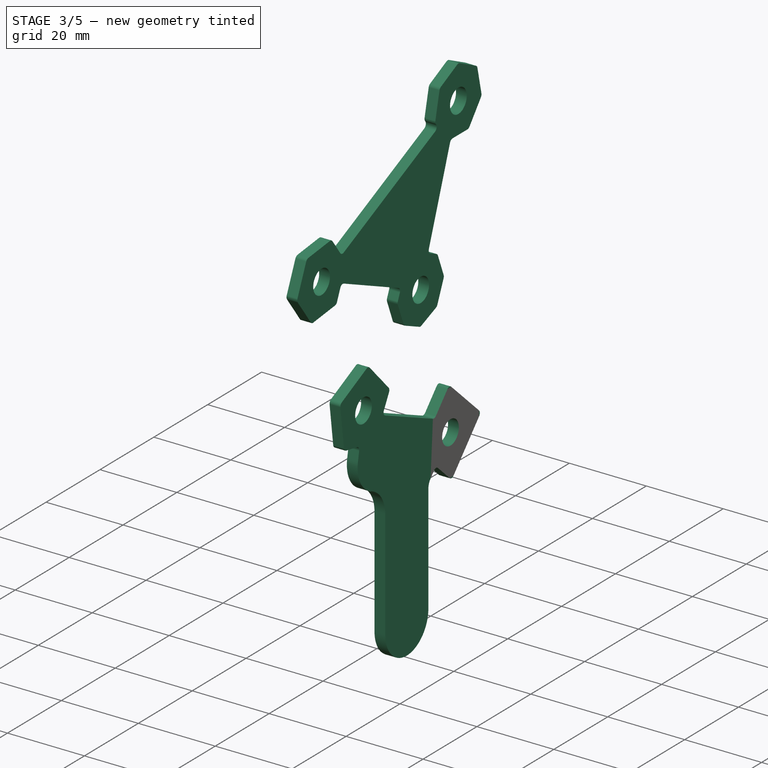
[diagram: stage 3 of 5 — iso view after this stage's code; geometry added in this stage tinted green]
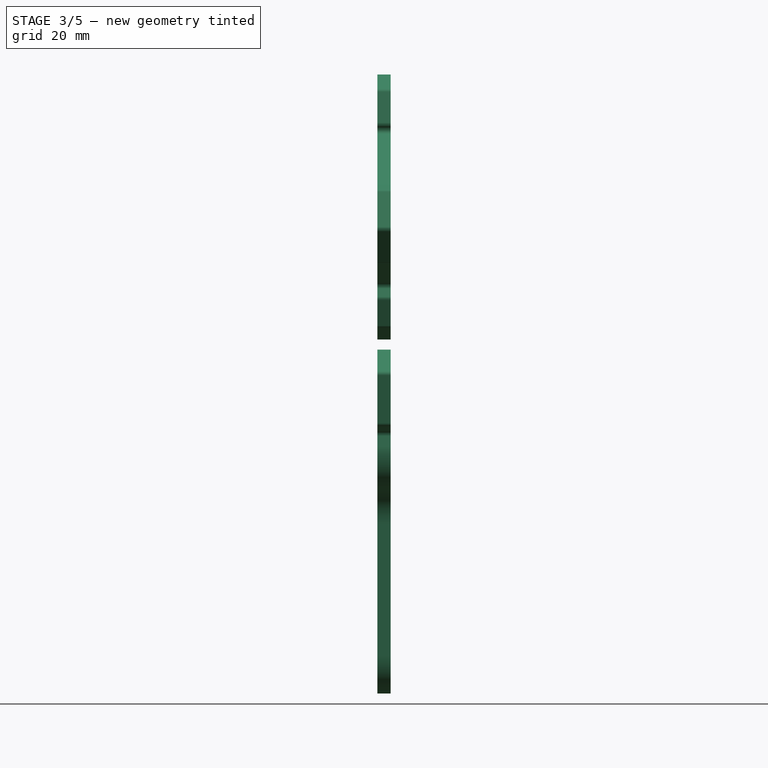
[diagram: stage 3 of 5 — front view after this stage's code; geometry added in this stage tinted green]
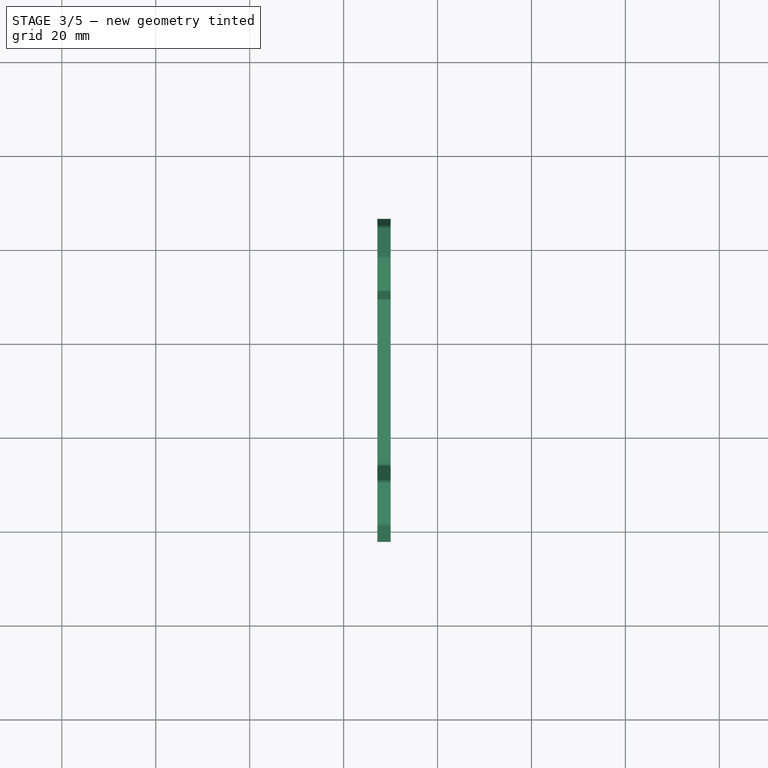
[diagram: stage 3 of 5 — top view after this stage's code; geometry added in this stage tinted green]
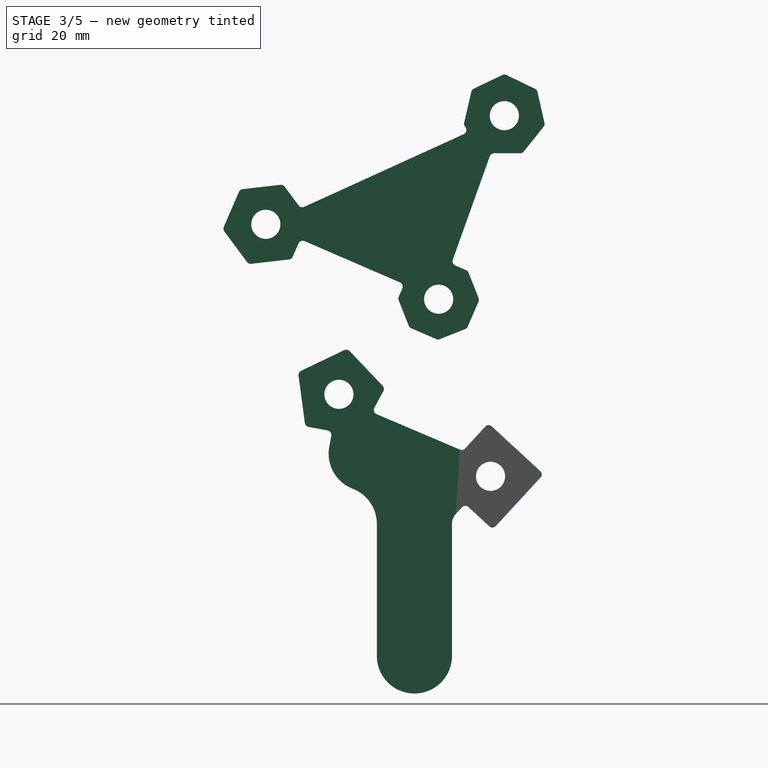
[diagram: stage 3 of 5 — right view after this stage's code; geometry added in this stage tinted green]
FEATURE [Sketcher::SketchObject] Sketch048
  ExternalGeometry = -> [Pad039,Binder023]
  FullyConstrained = true
  MapMode = 5
  Placement = pos=(32.9,3.9e-15,7.5e-15) rot=(0.57735,0.57735,0.57735;2.0944rad)
  Support = -> [Pad039]
  sketch-geometry (6):
    g0: LineSegment StartX=-38.2564 StartY=-45.9757 StartZ=0 EndX=-26.4916 EndY=-56.8195 EndZ=0
    g1: LineSegment StartX=-26.4916 StartY=-56.8195 StartZ=0 EndX=-15.6478 EndY=-45.0547 EndZ=0
    g2: LineSegment StartX=-15.6478 StartY=-45.0547 StartZ=0 EndX=-27.4126 EndY=-34.2108 EndZ=0
    g3: LineSegment StartX=-27.4126 StartY=-34.2108 StartZ=0 EndX=-38.2564 EndY=-45.9757 EndZ=0
    g4: Circle CenterX=-26.9521 CenterY=-45.5152 CenterZ=0 NormalX=0 NormalY=0 NormalZ=1 AngleXU=0 Radius=11.3137
    g5: Circle CenterX=-26.9521 CenterY=-45.5152 CenterZ=0 NormalX=0 NormalY=0 NormalZ=1 AngleXU=0 Radius=3.1
  constraints (16):
    c: Coincident(g0,g1)
    c: Coincident(g1,g2)
    c: Coincident(g2,g3)
    c: Coincident(g3,g0)
    c: Equal(g0,g1)
    c: Equal(g0,g2)
    c: Equal(g0,g3)
    c: PointOnObject(g0,g4)
    c: PointOnObject(g1,g4)
    c: PointOnObject(g2,g4)
    c: PointOnObject(g3,g4)
    c: Coincident(g4,g-3)
    c: Tangent(g3,g-3)
    c: Perpendicular(g-4,g2)
    c: Coincident(g5,g4)
    c: Equal(g5,g-5)
FEATURE [PartDesign::Pad] Pad040
  BaseFeature = -> Pad039
  Direction = (1,2e-16,2e-16)
  Length = 2.8
  Length2 = 10
  Placement = pos=(30.1,3.3e-15,6.7e-15) rot=(0.57735,0.57735,0.57735;2.0944rad)
  Profile = -> Sketch048
  ReferenceAxis = -> Sketch048 [N_Axis]
  Refine = true
  Reversed = true
  Type = 0
  expr: Length = Spreadsheet.acrylic_thin
FEATURE [App::DocumentObjectGroup] Group001  label="Motor"
  Group = -> [Cut001,Compound001_child2,Compound001_child0]
FEATURE [PartDesign::ShapeBinder] ShapeBinder
  Placement = pos=(0,0,0) rot=(0.57735,0.57735,0.57735;2.0944rad)
  Support = -> [Sketch042]
  TraceSupport = false
FEATURE [PartDesign::Body] Body028  label="cam_1_right"
  Group = -> [Binder016,Sketch039,Pad033,ShapeBinder]
  Origin = -> Origin033
  Tip = -> Pad033
FEATURE [PartDesign::Fillet] Fillet
  Base = -> Pad040 [Edge2,Edge26,Edge29,Edge16,Edge12,Edge4]
  BaseFeature = -> Pad040
  Placement = pos=(30.1,3.3e-15,6.7e-15) rot=(0.57735,0.57735,0.57735;2.0944rad)
  Radius = 1
  SupportTransform = false
  UseAllEdges = false
FEATURE [PartDesign::Body] Body031  label="link_0_7_right"
  Group = -> [Binder019,Binder020,DatumPlane002,Sketch043,Pad035,Sketch044,Pad036,Fillet001]
  Origin = -> Origin037
  Tip = -> Fillet001
FEATURE [PartDesign::SubShapeBinder] Binder025
  BindCopyOnChange = 0
  BindMode = 0
  ClaimChildren = false
  Context = -> Body034 [Binder025.]
  Fuse = false
  MakeFace = true
  OffsetFill = false
  OffsetIntersection = false
  OffsetJoinType = 0
  OffsetOpenResult = false
  PartialLoad = false
  Relative = true
  Support = -> [Body033[Fillet.]]
  _Version = 2
FEATURE [PartDesign::ShapeBinder] ShapeBinder001
  Placement = pos=(0,0,0) rot=(0.57735,0.57735,0.57735;2.0944rad)
  Support = -> [Sketch042]
  TraceSupport = false
FEATURE [PartDesign::Plane] DatumPlane005
  AttachmentOffset = pos=(0,0,0.1) rot=(0,0,1;0rad)
  Length = 113.661
  MapMode = 5
  Placement = pos=(30,1.5e-15,8.9e-15) rot=(0.57735,-0.57735,-0.57735;2.0944rad)
  ResizeMode = 0
  Support = -> [Binder025]
  Width = 137.58
FEATURE [Sketcher::SketchObject] Sketch049
  ExternalGeometry = -> [ShapeBinder001,Binder025]
  FullyConstrained = true
  MapMode = 5
  Placement = pos=(30,1.5e-15,8.9e-15) rot=(0.57735,0.57735,0.57735;2.0944rad)
  Support = -> [DatumPlane005]
  sketch-geometry (36):
    g0: ArcOfCircle CenterX=-43.1601 CenterY=-83.7569 CenterZ=0 NormalX=0 NormalY=0 NormalZ=1 AngleXU=0 Radius=8 StartAngle=3.14159 EndAngle=6.28319
    g1: LineSegment StartX=-51.1601 StartY=-55.631 StartZ=0 EndX=-51.1601 EndY=-83.7569 EndZ=0
    g2: LineSegment StartX=-35.1601 StartY=-55.631 StartZ=0 EndX=-35.1601 EndY=-83.7569 EndZ=0
    g3: Circle CenterX=-26.9521 CenterY=-45.5152 CenterZ=0 NormalX=0 NormalY=0 NormalZ=1 AngleXU=0 Radius=3.1
    g4: Circle CenterX=-59.2315 CenterY=-28.0529 CenterZ=0 NormalX=0 NormalY=0 NormalZ=1 AngleXU=0 Radius=3.1
    g5: LineSegment StartX=-27.4126 StartY=-34.2108 StartZ=0 EndX=-38.2564 EndY=-45.9757 EndZ=0
    g6: LineSegment StartX=-38.2564 StartY=-45.9757 StartZ=0 EndX=-26.4916 EndY=-56.8195 EndZ=0
    g7: LineSegment StartX=-26.4916 StartY=-56.8195 StartZ=0 EndX=-15.6478 EndY=-45.0547 EndZ=0
    g8: LineSegment StartX=-15.6478 StartY=-45.0547 StartZ=0 EndX=-27.4126 EndY=-34.2108 EndZ=0
    g9: Circle CenterX=-26.9521 CenterY=-45.5152 CenterZ=0 NormalX=0 NormalY=0 NormalZ=1 AngleXU=0 Radius=11.3137
    g10: Circle CenterX=-26.9521 CenterY=-45.5152 CenterZ=0 NormalX=0 NormalY=0 NormalZ=1 AngleXU=0 Radius=8
    g11: Circle CenterX=-59.2315 CenterY=-28.0529 CenterZ=0 NormalX=0 NormalY=0 NormalZ=1 AngleXU=0 Radius=8
    g12: LineSegment StartX=-67.929 StartY=-23.3479 StartZ=0 EndX=-66.394 EndY=-34.8707 EndZ=0
    g13: LineSegment StartX=-66.394 StartY=-34.8707 StartZ=0 EndX=-54.9607 EndY=-36.9716 EndZ=0
    g14: LineSegment StartX=-54.9607 StartY=-36.9716 StartZ=0 EndX=-49.4296 EndY=-26.7472 EndZ=0
    g15: LineSegment StartX=-49.4296 StartY=-26.7472 StartZ=0 EndX=-57.4444 EndY=-18.3272 EndZ=0
    g16: LineSegment StartX=-57.4444 StartY=-18.3272 StartZ=0 EndX=-67.929 EndY=-23.3479 EndZ=0
    g17: Circle CenterX=-59.2315 CenterY=-28.0529 CenterZ=0 NormalX=0 NormalY=0 NormalZ=1 AngleXU=0 Radius=9.88854
    g18: LineSegment StartX=-60.6773 StartY=-35.9212 StartZ=0 EndX=-61.289 EndY=-39.25 EndZ=0
    g19: ArcOfCircle CenterX=-53.4208 CenterY=-40.6958 CenterZ=0 NormalX=0 NormalY=0 NormalZ=1 AngleXU=0 Radius=8 StartAngle=2.95987 EndAngle=4.3455
    g20: ArcOfCircle CenterX=-59.1601 CenterY=-55.631 CenterZ=0 NormalX=0 NormalY=0 NormalZ=1 AngleXU=0 Radius=8 StartAngle=-1.93e-12 EndAngle=1.20391
    g21: LineSegment StartX=-32.374 StartY=-51.3976 StartZ=0 EndX=-34.3395 EndY=-53.53 EndZ=0
    g22: ArcOfCircle CenterX=-32.0601 CenterY=-55.631 CenterZ=0 NormalX=0 NormalY=0 NormalZ=1 AngleXU=0 Radius=3.1 StartAngle=2.39691 EndAngle=3.14159
    g23: LineSegment StartX=-60.6773 StartY=-35.9212 StartZ=0 EndX=-66.394 EndY=-34.8707 EndZ=0
    g24: LineSegment StartX=-66.394 StartY=-34.8707 StartZ=0 EndX=-67.929 EndY=-23.3479 EndZ=0
    g25: LineSegment StartX=-67.929 StartY=-23.3479 StartZ=0 EndX=-57.4444 EndY=-18.3272 EndZ=0
    g26: LineSegment StartX=-57.4444 StartY=-18.3272 StartZ=0 EndX=-49.4296 EndY=-26.7472 EndZ=0
    g27: LineSegment StartX=-49.4296 StartY=-26.7472 StartZ=0 EndX=-52.1951 EndY=-31.8594 EndZ=0
    g28: LineSegment StartX=-51.1601 StartY=-83.7569 StartZ=0 EndX=-43.1601 EndY=-83.7569 EndZ=0
    g29: LineSegment StartX=-43.1601 StartY=-83.7569 StartZ=0 EndX=-35.1601 EndY=-83.7569 EndZ=0
    g30: LineSegment StartX=-43.1601 StartY=-83.7569 StartZ=0 EndX=-43.1601 EndY=-91.7569 EndZ=0
    g31: LineSegment StartX=-52.1951 StartY=-31.8594 StartZ=0 EndX=-32.8345 EndY=-40.0933 EndZ=0
    g32: LineSegment StartX=-32.8345 StartY=-40.0933 StartZ=0 EndX=-27.4126 EndY=-34.2108 EndZ=0
    g33: LineSegment StartX=-27.4126 StartY=-34.2108 StartZ=0 EndX=-15.6478 EndY=-45.0547 EndZ=0
    g34: LineSegment StartX=-15.6478 StartY=-45.0547 StartZ=0 EndX=-26.4916 EndY=-56.8195 EndZ=0
    g35: LineSegment StartX=-26.4916 StartY=-56.8195 StartZ=0 EndX=-32.374 EndY=-51.3976 EndZ=0
  constraints (82):
    c: PointOnObject(g-5,g0)
    c: Tangent(g2,g0) = 1.5708
    c: Tangent(g1,g0) = -1.5708
    c: Coincident(g3,g-5)
    c: Coincident(g4,g-4)
    c: Equal(g-6,g3)
    c: Equal(g3,g4)
    c: Coincident(g5,g6)
    c: Coincident(g6,g7)
    c: Coincident(g7,g8)
    c: Coincident(g8,g5)
    c: Equal(g5,g6)
    c: Equal(g5,g7)
    c: Equal(g5,g8)
    c: PointOnObject(g5,g9)
    c: PointOnObject(g6,g9)
    c: PointOnObject(g7,g9)
    c: PointOnObject(g8,g9)
    c: Coincident(g9,g3)
    c: Coincident(g10,g3)
    c: Tangent(g5,g10)
    c: Coincident(g11,g4)
    c: Equal(g11,g10)
    c: Coincident(g12,g13)
    c: Coincident(g13,g14)
    c: Coincident(g14,g15)
    c: Coincident(g15,g16)
    c: Coincident(g16,g12)
    c: Equal(g12, g13-g16) x4
    c: PointOnObject(g12,g17)
    c: PointOnObject(g13,g17)
    c: PointOnObject(g14,g17)
    c: PointOnObject(g15,g17)
    c: PointOnObject(g16,g17)
    c: Coincident(g17,g4)
    c: Tangent(g16,g11)
    c: Perpendicular(g-3,g14)
    c: Tangent(g18,g19) = -1.5708
    c: Tangent(g19,g20) = 1.5708
    c: Tangent(g20,g1) = 1.5708
    c: Equal(g20,g19)
    c: Perpendicular(g13,g18)
    c: Symmetric(g12,g13,g18)
    c: Equal(g19,g11)
    c: Tangent(g21,g22) = -1.5708
    c: Perpendicular(g21,g6)
    c: Symmetric(g5,g6,g21)
    c: Tangent(g22,g2) = -1.5708
    c: Equal(g22,g3)
    c: Equal(g2,g1)
    c: Distance(g18) = 3.38456
    c: Coincident(g18,g23)
    c: Coincident(g23,g12)
    c: Coincident(g23,g24)
    c: Coincident(g24,g12)
    c: Coincident(g24,g25)
    c: Coincident(g25,g15)
    c: Coincident(g25,g26)
    c: Coincident(g26,g14)
    c: Coincident(g26,g27)
    c: Tangent(g10,g-7)
    c: Parallel(g5,g-7)
    c: Coincident(g28,g0)
    c: Coincident(g28,g0)
    c: Coincident(g29,g0)
    c: Coincident(g29,g0)
    c: Coincident(g30,g0)
    c: Perpendicular(g30,g28)
    c: Coincident(g30,g-5)
    c: Equal(g11,g0)
    c: Coincident(g31,g27)
    c: Symmetric(g13,g26,g27)
    c: Symmetric(g-7,g-7,g31)
    c: Perpendicular(g30,g29)
    c: Coincident(g32,g33)
    c: Coincident(g33,g34)
    c: Coincident(g34,g35)
    c: Coincident(g31,g32)
    c: Coincident(g5,g32)
    c: Coincident(g7,g33)
    c: Coincident(g6,g34)
    c: Coincident(g21,g35)
FEATURE [PartDesign::Pad] Pad041
  Direction = (1,1e-16,3e-16)
  Length = 2.8
  Length2 = 10
  Placement = pos=(30,1.5e-15,8.9e-15) rot=(0.57735,-0.57735,-0.57735;2.0944rad)
  Profile = -> Sketch049
  ReferenceAxis = -> Sketch049 [N_Axis]
  Reversed = true
  Type = 0
  expr: Length = Spreadsheet.acrylic_thin
FEATURE [PartDesign::Fillet] Fillet002
  Base = -> Pad041 [Edge38,Edge35,Edge32,Edge29,Edge26,Edge23,Edge1,Edge50,Edge47,Edge44,Edge41]
  BaseFeature = -> Pad041
  Placement = pos=(30,1.5e-15,8.9e-15) rot=(0.57735,-0.57735,-0.57735;2.0944rad)
  Radius = 1
  SupportTransform = false
  UseAllEdges = false
FEATURE [PartDesign::Body] Body034  label="link_4_5_right"
  Group = -> [Binder025,ShapeBinder001,DatumPlane005,Sketch049,Pad041,Fillet002]
  Origin = -> Origin040
  Tip = -> Fillet002
FEATURE [PartDesign::SubShapeBinder] Binder026
  BindCopyOnChange = 0
  BindMode = 0
  ClaimChildren = false
  Context = -> Body035 [Binder026.]
  Fuse = false
  MakeFace = true
  OffsetFill = false
  OffsetIntersection = false
  OffsetJoinType = 0
  OffsetOpenResult = false
  PartialLoad = false
  Relative = true
  Support = -> [Body031]
  _Version = 2
FEATURE [PartDesign::Plane] DatumPlane006
  AttachmentOffset = pos=(0,0,0.1) rot=(0,0,1;0rad)
  Length = 125.65
  MapMode = 5
  Placement = pos=(27.2,-5.5e-15,1.1e-15) rot=(0.57735,0.57735,0.57735;2.0944rad)
  ResizeMode = 0
  Support = -> [Binder026]
  Width = 81.8678
FEATURE [PartDesign::ShapeBinder] ShapeBinder002
  Placement = pos=(0,0,0) rot=(0.57735,0.57735,0.57735;2.0944rad)
  Support = -> [Sketch042]
  TraceSupport = false
FEATURE [Sketcher::SketchObject] Sketch050
  ExternalGeometry = -> [ShapeBinder002,Binder026]
  FullyConstrained = true
  MapMode = 5
  Placement = pos=(27.2,-5.5e-15,1.1e-15) rot=(0.57735,0.57735,0.57735;2.0944rad)
  Support = -> [DatumPlane006]
  sketch-geometry (39):
    g0: Circle CenterX=-24.0135 CenterY=31.2721 CenterZ=0 NormalX=0 NormalY=0 NormalZ=1 AngleXU=0 Radius=3.1
    g1: Circle CenterX=-74.7944 CenterY=8.14317 CenterZ=0 NormalX=0 NormalY=0 NormalZ=1 AngleXU=0 Radius=3.1
    g2: Circle CenterX=-38 CenterY=-7.8 CenterZ=0 NormalX=0 NormalY=0 NormalZ=1 AngleXU=0 Radius=3.1
    g3: Circle CenterX=-24.0135 CenterY=31.2721 CenterZ=0 NormalX=0 NormalY=0 NormalZ=1 AngleXU=0 Radius=8
    g4: Circle CenterX=-74.7944 CenterY=8.14317 CenterZ=0 NormalX=0 NormalY=0 NormalZ=1 AngleXU=0 Radius=8
    g5: Circle CenterX=-38 CenterY=-7.8 CenterZ=0 NormalX=0 NormalY=0 NormalZ=1 AngleXU=0 Radius=8
    g6: LineSegment StartX=-80.2985 StartY=15.5619 StartZ=0 EndX=-83.9713 EndY=7.0858 EndZ=0
    g7: LineSegment StartX=-83.9713 StartY=7.0858 StartZ=0 EndX=-78.4671 EndY=-0.332934 EndZ=0
    g8: LineSegment StartX=-78.4671 StartY=-0.332934 StartZ=0 EndX=-69.2902 EndY=0.724436 EndZ=0
    g9: LineSegment StartX=-69.2902 StartY=0.724436 StartZ=0 EndX=-65.6175 EndY=9.20054 EndZ=0
    g10: LineSegment StartX=-65.6175 StartY=9.20054 StartZ=0 EndX=-71.1216 EndY=16.6193 EndZ=0
    g11: LineSegment StartX=-71.1216 StartY=16.6193 StartZ=0 EndX=-80.2985 EndY=15.5619 EndZ=0
    g12: Circle CenterX=-74.7944 CenterY=8.14317 CenterZ=0 NormalX=0 NormalY=0 NormalZ=1 AngleXU=0 Radius=9.2376
    g13: LineSegment StartX=-29.342 StartY=-7.94014 StartZ=0 EndX=-31.7788 EndY=-1.77696 EndZ=0
    g14: LineSegment StartX=-31.7788 StartY=-1.77696 StartZ=0 EndX=-37.8599 EndY=0.858004 EndZ=0
    g15: LineSegment StartX=-37.8599 StartY=0.858004 StartZ=0 EndX=-44.023 EndY=-1.57877 EndZ=0
    g16: LineSegment StartX=-44.023 StartY=-1.57877 StartZ=0 EndX=-46.658 EndY=-7.65986 EndZ=0
    g17: LineSegment StartX=-46.658 StartY=-7.65986 StartZ=0 EndX=-44.2212 EndY=-13.823 EndZ=0
    g18: LineSegment StartX=-44.2212 StartY=-13.823 StartZ=0 EndX=-38.1401 EndY=-16.458 EndZ=0
    g19: LineSegment StartX=-38.1401 StartY=-16.458 StartZ=0 EndX=-31.977 EndY=-14.0212 EndZ=0
    g20: LineSegment StartX=-31.977 StartY=-14.0212 StartZ=0 EndX=-29.342 EndY=-7.94014 EndZ=0
    g21: Circle CenterX=-38 CenterY=-7.8 CenterZ=0 NormalX=0 NormalY=0 NormalZ=1 AngleXU=0 Radius=8.65914
    g22: LineSegment StartX=-67.4538 StartY=4.96249 StartZ=0 EndX=-45.3405 EndY=-4.61932 EndZ=0
    g23: LineSegment StartX=-17.0576 StartY=36.7909 StartZ=0 EndX=-23.9913 EndY=40.1514 EndZ=0
    g24: LineSegment StartX=-23.9913 StartY=40.1514 StartZ=0 EndX=-30.9418 EndY=36.8256 EndZ=0
    g25: LineSegment StartX=-30.9418 StartY=36.8256 StartZ=0 EndX=-32.6752 EndY=29.3179 EndZ=0
    g26: LineSegment StartX=-32.6752 StartY=29.3179 StartZ=0 EndX=-27.8861 EndY=23.2818 EndZ=0
    g27: LineSegment StartX=-27.8861 StartY=23.2818 StartZ=0 EndX=-20.1809 EndY=23.2625 EndZ=0
    g28: LineSegment StartX=-20.1809 StartY=23.2625 StartZ=0 EndX=-15.3618 EndY=29.2746 EndZ=0
    g29: LineSegment StartX=-15.3618 StartY=29.2746 StartZ=0 EndX=-17.0576 EndY=36.7909 EndZ=0
    g30: Circle CenterX=-24.0135 CenterY=31.2721 CenterZ=0 NormalX=0 NormalY=0 NormalZ=1 AngleXU=0 Radius=8.87933
    g31: LineSegment StartX=-67.349 StartY=11.5343 StartZ=0 EndX=-31.5149 EndY=27.8555 EndZ=0
    g32: LineSegment StartX=-26.8747 StartY=23.2792 StartZ=0 EndX=-35.2981 EndY=-0.252026 EndZ=0
    g33: LineSegment StartX=-46.658 StartY=-7.65986 StartZ=0 EndX=-45.3405 EndY=-4.61932 EndZ=0
    g34: LineSegment StartX=-31.7788 StartY=-1.77696 StartZ=0 EndX=-35.2981 EndY=-0.252026 EndZ=0
    g35: LineSegment StartX=-20.1809 StartY=23.2625 StartZ=0 EndX=-26.8747 EndY=23.2792 EndZ=0
    g36: LineSegment StartX=-32.6752 StartY=29.3179 StartZ=0 EndX=-31.5149 EndY=27.8555 EndZ=0
    g37: LineSegment StartX=-71.1216 StartY=16.6193 StartZ=0 EndX=-67.349 EndY=11.5343 EndZ=0
    g38: LineSegment StartX=-69.2902 StartY=0.724436 StartZ=0 EndX=-67.4538 EndY=4.96249 EndZ=0
  constraints (90):
    c: Equal(g0,g1)
    c: Equal(g1,g2)
    c: Equal(g2,g-5)
    c: Coincident(g0,g-4)
    c: Coincident(g1,g-6)
    c: Coincident(g2,g-6)
    c: Coincident(g3,g0)
    c: Tangent(g3,g-7)
    c: Coincident(g4,g1)
    c: Coincident(g5,g2)
    c: Equal(g5,g4)
    c: Equal(g4,g3)
    c: Coincident(g6,g7)
    c: Coincident(g7,g8)
    c: Coincident(g8,g9)
    c: Coincident(g9,g10)
    c: Coincident(g10,g11)
    c: Coincident(g11,g6)
    c: Equal(g6, g7-g11) x5
    c: PointOnObject(g6,g12)
    c: PointOnObject(g7,g12)
    c: PointOnObject(g8,g12)
    c: PointOnObject(g9,g12)
    c: PointOnObject(g10,g12)
    c: PointOnObject(g11,g12)
    c: Coincident(g12,g1)
    c: Tangent(g11,g4)
    c: Coincident(g13,g14)
    c: Coincident(g14,g15)
    c: Coincident(g15,g16)
    c: Coincident(g16,g17)
    c: Coincident(g17,g18)
    c: Coincident(g18,g19)
    c: Coincident(g19,g20)
    c: Coincident(g20,g13)
    c: Equal(g13, g14-g20) x7
    c: PointOnObject(g13,g21)
    c: PointOnObject(g14,g21)
    c: PointOnObject(g15,g21)
    c: PointOnObject(g16,g21)
    c: PointOnObject(g17,g21)
    c: PointOnObject(g18,g21)
    c: PointOnObject(g19,g21)
    c: PointOnObject(g20,g21)
    c: Coincident(g21,g2)
    c: Tangent(g13,g5)
    c: Perpendicular(g-6,g9)
    c: Perpendicular(g-6,g16)
    c: PointOnObject(g22,g-6)
    c: PointOnObject(g22,g-6)
    c: PointOnObject(g22,g4)
    c: PointOnObject(g22,g5)
    c: Coincident(g23,g24)
    c: Coincident(g24,g25)
    c: Coincident(g25,g26)
    c: Coincident(g26,g27)
    c: Coincident(g27,g28)
    c: Coincident(g28,g29)
    c: Coincident(g29,g23)
    c: Equal(g23, g24-g29) x6
    c: PointOnObject(g23,g30)
    c: PointOnObject(g24,g30)
    c: PointOnObject(g25,g30)
    c: PointOnObject(g26,g30)
    c: PointOnObject(g27,g30)
    c: PointOnObject(g28,g30)
    c: PointOnObject(g29,g30)
    c: Coincident(g0,g30)
    c: Parallel(g24,g-7)
    c: Tangent(g24,g3)
    c: PointOnObject(g31,g-3)
    c: PointOnObject(g31,g-3)
    c: PointOnObject(g32,g-4)
    c: PointOnObject(g32,g-4)
    c: PointOnObject(g31,g10)
    c: PointOnObject(g31,g26)
    c: PointOnObject(g32,g27)
    c: PointOnObject(g32,g14)
    c: Coincident(g33,g17)
    c: Coincident(g33,g22)
    c: Coincident(g34,g13)
    c: Coincident(g34,g32)
    c: Coincident(g35,g28)
    c: Coincident(g35,g32)
    c: Coincident(g36,g25)
    c: Coincident(g36,g31)
    c: Coincident(g37,g11)
    c: Coincident(g37,g31)
    c: Coincident(g38,g8)
    c: Coincident(g38,g22)
FEATURE [PartDesign::Pad] Pad042
  Direction = (1,0,0)
  Length = 2.8
  Length2 = 10
  Placement = pos=(27.2,-5.5e-15,1.1e-15) rot=(0.57735,0.57735,0.57735;2.0944rad)
  Profile = -> Sketch050
  ReferenceAxis = -> Sketch050 [N_Axis]
  Type = 0
  expr: Length = Spreadsheet.acrylic_thin
FEATURE [PartDesign::Body] Body027  label="motor_shaft"
  Group = -> [Sketch037,Pad031,Sketch038,Pad032,Sketch053,Pad045]
  Origin = -> Origin
  Tip = -> Pad045
FEATURE [PartDesign::Fillet] Fillet006
  Base = -> Pad042 [Edge65,Edge62,Edge59,Edge56,Edge53,Edge50,Edge47,Edge44,Edge41,Edge38,Edge35,Edge32,Edge29,Edge26,Edge23,Edge20,Edge17,Edge14,Edge11,Edge8,Edge5,Edge1,Edge2]
  BaseFeature = -> Pad042
  Placement = pos=(27.2,-5.5e-15,1.1e-15) rot=(0.57735,0.57735,0.57735;2.0944rad)
  Radius = 1
  SupportTransform = false
  UseAllEdges = false
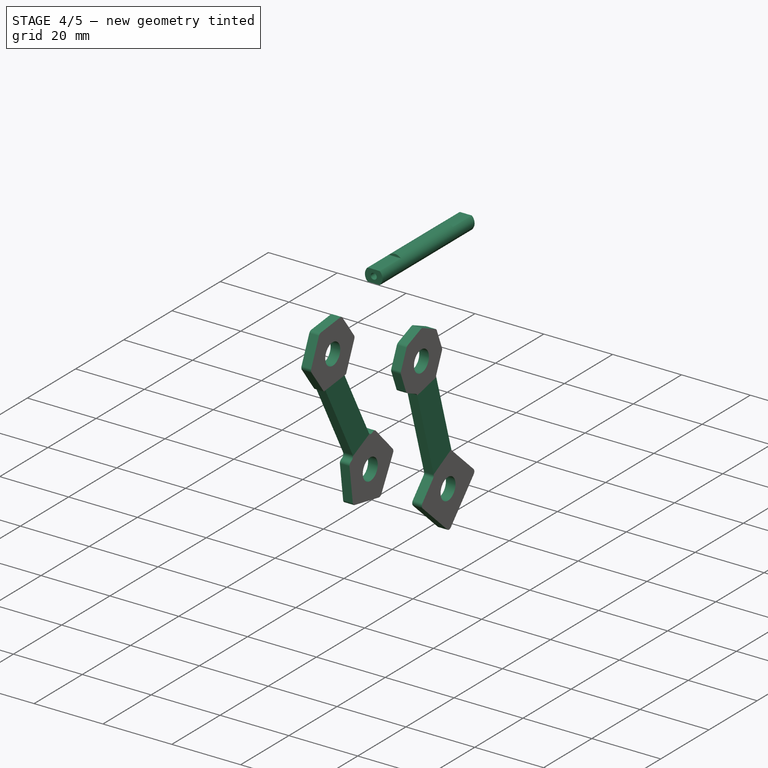
[diagram: stage 4 of 5 — iso view after this stage's code; geometry added in this stage tinted green]
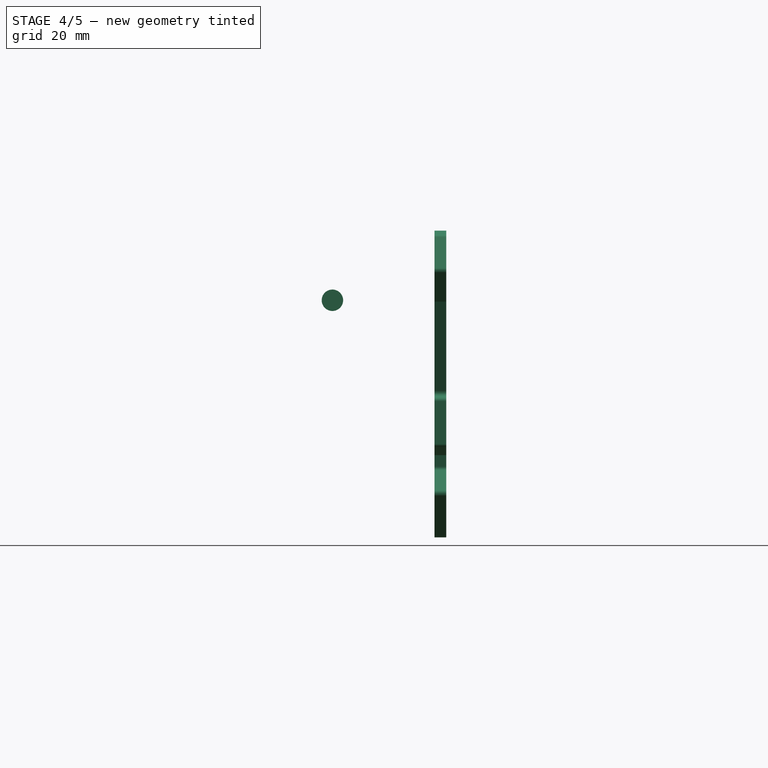
[diagram: stage 4 of 5 — front view after this stage's code; geometry added in this stage tinted green]
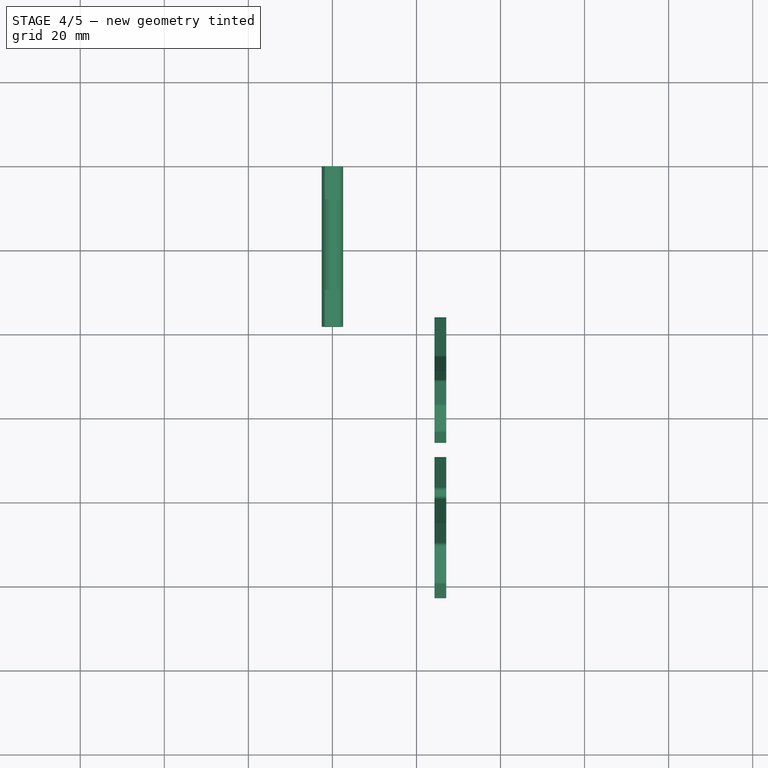
[diagram: stage 4 of 5 — top view after this stage's code; geometry added in this stage tinted green]
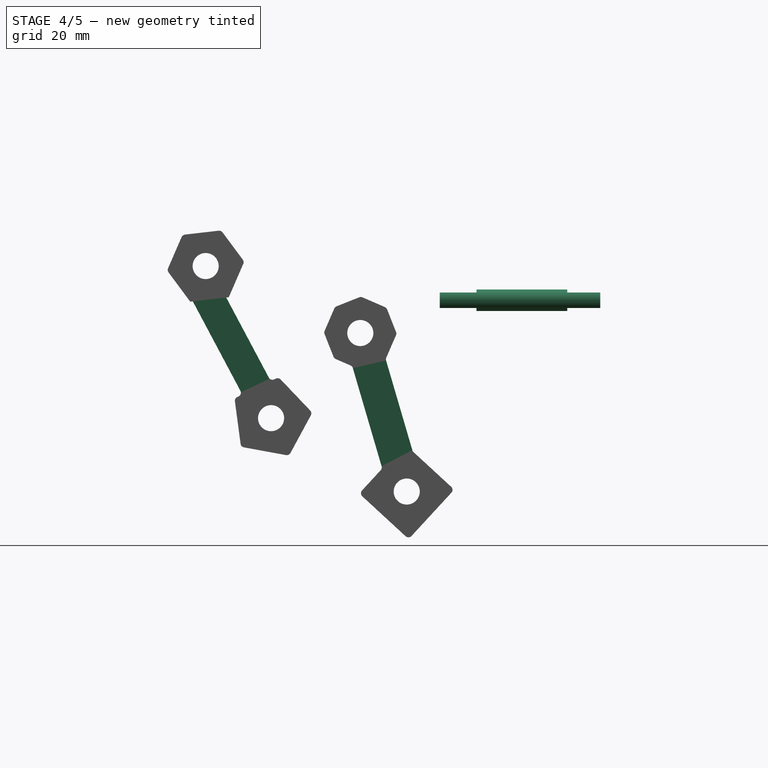
[diagram: stage 4 of 5 — right view after this stage's code; geometry added in this stage tinted green]
FEATURE [Part::FeaturePython] Compound001_child1  label="motoreducteur.1"  # WARN: FeaturePython — macro-defined, semantics opaque (R4)
  Base = -> Compound001
  FilterType = 1
  Invert = false
  OverrideMaxVal = 0
  WindowFrom = 80
  WindowTo = 100
  items = 1
FEATURE [PartDesign::Body] Body035  label="link_6_7_8_right"
  Group = -> [Binder026,DatumPlane006,ShapeBinder002,Sketch050,Pad042,Fillet006]
  Origin = -> Origin041
  Tip = -> Fillet006
FEATURE [PartDesign::SubShapeBinder] Binder
  BindCopyOnChange = 0
  BindMode = 0
  ClaimChildren = false
  Context = -> Body036 [Binder.]
  Fuse = false
  MakeFace = true
  OffsetFill = false
  OffsetIntersection = false
  OffsetJoinType = 0
  OffsetOpenResult = false
  PartialLoad = false
  Relative = true
  Support = -> [Body034[Pad041.]]
  _Version = 2
FEATURE [PartDesign::SubShapeBinder] Binder033
  BindCopyOnChange = 0
  BindMode = 0
  ClaimChildren = false
  Context = -> Body036 [Binder033.]
  Fuse = false
  MakeFace = true
  OffsetFill = false
  OffsetIntersection = false
  OffsetJoinType = 0
  OffsetOpenResult = false
  PartialLoad = false
  Relative = true
  Support = -> [Body035[Pad042.]]
  _Version = 2
FEATURE [Sketcher::SketchObject] Sketch051
  ExternalGeometry = -> [Binder,Binder033]
  FullyConstrained = true
  MapMode = 5
  Placement = pos=(27.1,0,3e-15) rot=(0.57735,0.57735,0.57735;2.0944rad)
  Support = -> [DatumPlane007]
  sketch-geometry (33):
    g0: Circle CenterX=-74.7944 CenterY=8.14317 CenterZ=0 NormalX=0 NormalY=0 NormalZ=1 AngleXU=0 Radius=3.1
    g1: Circle CenterX=-59.2315 CenterY=-28.0529 CenterZ=0 NormalX=0 NormalY=0 NormalZ=1 AngleXU=0 Radius=3.1
    g2: Circle CenterX=-74.7944 CenterY=8.14317 CenterZ=0 NormalX=0 NormalY=0 NormalZ=1 AngleXU=0 Radius=8
    g3: Circle CenterX=-59.2315 CenterY=-28.0529 CenterZ=0 NormalX=0 NormalY=0 NormalZ=1 AngleXU=0 Radius=8
    g4: LineSegment StartX=-67.929 StartY=-23.3479 StartZ=0 EndX=-66.394 EndY=-34.8707 EndZ=0
    g5: LineSegment StartX=-66.394 StartY=-34.8707 StartZ=0 EndX=-54.9607 EndY=-36.9716 EndZ=0
    g6: LineSegment StartX=-54.9607 StartY=-36.9716 StartZ=0 EndX=-49.4296 EndY=-26.7472 EndZ=0
    g7: LineSegment StartX=-49.4296 StartY=-26.7472 StartZ=0 EndX=-57.4444 EndY=-18.3272 EndZ=0
    g8: LineSegment StartX=-57.4444 StartY=-18.3272 StartZ=0 EndX=-67.929 EndY=-23.3479 EndZ=0
    g9: Circle CenterX=-59.2315 CenterY=-28.0529 CenterZ=0 NormalX=0 NormalY=0 NormalZ=1 AngleXU=0 Radius=9.88854
    g10: LineSegment StartX=-69.2902 StartY=0.724436 StartZ=0 EndX=-65.6175 EndY=9.20054 EndZ=0
    g11: LineSegment StartX=-65.6175 StartY=9.20054 StartZ=0 EndX=-71.1216 EndY=16.6193 EndZ=0
    g12: LineSegment StartX=-71.1216 StartY=16.6193 StartZ=0 EndX=-80.2985 EndY=15.5619 EndZ=0
    g13: LineSegment StartX=-80.2985 StartY=15.5619 StartZ=0 EndX=-83.9713 EndY=7.0858 EndZ=0
    g14: LineSegment StartX=-83.9713 StartY=7.0858 StartZ=0 EndX=-78.4671 EndY=-0.332934 EndZ=0
    g15: LineSegment StartX=-78.4671 StartY=-0.332934 StartZ=0 EndX=-69.2902 EndY=0.724436 EndZ=0
    g16: Circle CenterX=-74.7944 CenterY=8.14317 CenterZ=0 NormalX=0 NormalY=0 NormalZ=1 AngleXU=0 Radius=9.2376
    g17: LineSegment StartX=-77.8524 StartY=-0.262104 StartZ=0 EndX=-78.4671 EndY=-0.332934 EndZ=0
    g18: LineSegment StartX=-78.4671 StartY=-0.332934 StartZ=0 EndX=-83.9713 EndY=7.0858 EndZ=0
    g19: LineSegment StartX=-83.9713 StartY=7.0858 StartZ=0 EndX=-80.2985 EndY=15.5619 EndZ=0
    g20: LineSegment StartX=-80.2985 StartY=15.5619 StartZ=0 EndX=-71.1216 EndY=16.6193 EndZ=0
    g21: LineSegment StartX=-71.1216 StartY=16.6193 StartZ=0 EndX=-65.6175 EndY=9.20054 EndZ=0
    g22: LineSegment StartX=-65.6175 StartY=9.20054 StartZ=0 EndX=-69.2902 EndY=0.724436 EndZ=0
    g23: LineSegment StartX=-69.2902 StartY=0.724436 StartZ=0 EndX=-69.9049 EndY=0.653605 EndZ=0
    g24: LineSegment StartX=-59.3257 StartY=-19.2281 StartZ=0 EndX=-57.4444 EndY=-18.3272 EndZ=0
    g25: LineSegment StartX=-57.4444 StartY=-18.3272 StartZ=0 EndX=-49.4296 EndY=-26.7472 EndZ=0
    g26: LineSegment StartX=-49.4296 StartY=-26.7472 StartZ=0 EndX=-54.9607 EndY=-36.9716 EndZ=0
    g27: LineSegment StartX=-54.9607 StartY=-36.9716 StartZ=0 EndX=-66.394 EndY=-34.8707 EndZ=0
    g28: LineSegment StartX=-66.394 StartY=-34.8707 StartZ=0 EndX=-67.929 EndY=-23.3479 EndZ=0
    g29: LineSegment StartX=-67.929 StartY=-23.3479 StartZ=0 EndX=-66.0476 EndY=-22.447 EndZ=0
    g30: LineSegment StartX=-73.8787 StartY=0.195751 StartZ=0 EndX=-62.6867 EndY=-20.8375 EndZ=0
    g31: LineSegment StartX=-77.8524 StartY=-0.262104 StartZ=0 EndX=-66.0476 EndY=-22.447 EndZ=0
    g32: LineSegment StartX=-59.3257 StartY=-19.2281 StartZ=0 EndX=-69.9049 EndY=0.653605 EndZ=0
  constraints (74):
    c: Equal(g1,g0)
    c: Coincident(g2,g0)
    c: Coincident(g3,g1)
    c: Coincident(g4,g5)
    c: Coincident(g5,g6)
    c: Coincident(g6,g7)
    c: Coincident(g7,g8)
    c: Coincident(g8,g4)
    c: Equal(g4, g5-g8) x4
    c: PointOnObject(g4,g9)
    c: PointOnObject(g5,g9)
    c: PointOnObject(g6,g9)
    c: PointOnObject(g7,g9)
    c: PointOnObject(g8,g9)
    c: Coincident(g9,g1)
    c: Tangent(g8,g3)
    c: Coincident(g10,g11)
    c: Coincident(g11,g12)
    c: Coincident(g12,g13)
    c: Coincident(g13,g14)
    c: Coincident(g14,g15)
    c: Coincident(g15,g10)
    c: Equal(g10, g11-g15) x5
    c: PointOnObject(g10,g16)
    c: PointOnObject(g11,g16)
    c: PointOnObject(g12,g16)
    c: PointOnObject(g13,g16)
    c: PointOnObject(g14,g16)
    c: PointOnObject(g15,g16)
    c: Coincident(g16,g0)
    c: Tangent(g2,g15)
    c: PointOnObject(g17,g15)
    c: PointOnObject(g29,g8)
    c: Distance(g30,g17) = 4
    c: PointOnObject(g23,g15)
    c: PointOnObject(g24,g8)
    c: Distance(g23,g30) = 4
    c: Coincident(g17,g14)
    c: Coincident(g17,g18)
    c: Coincident(g18,g13)
    c: Coincident(g18,g19)
    c: Coincident(g19,g12)
    c: Coincident(g19,g20)
    c: Coincident(g20,g11)
    c: Coincident(g20,g21)
    c: Coincident(g21,g10)
    c: Coincident(g21,g22)
    c: Coincident(g22,g10)
    c: Coincident(g22,g23)
    c: Coincident(g24,g7)
    c: Coincident(g24,g25)
    c: Coincident(g25,g6)
    c: Coincident(g25,g26)
    c: Coincident(g26,g5)
    c: Coincident(g26,g27)
    c: Coincident(g27,g4)
    c: Coincident(g27,g28)
    c: Coincident(g28,g4)
    c: Coincident(g28,g29)
    c: Coincident(g0,g-4)
    c: Coincident(g1,g-3)
    c: Parallel(g20,g-5)
    c: Tangent(g2,g-5)
    c: Parallel(g25,g-6)
    c: Tangent(g3,g-6)
    c: Equal(g0,g-4)
    c: Symmetric(g28,g24,g30)
    c: Symmetric(g17,g22,g30)
    c: Coincident(g31,g17)
    c: Coincident(g31,g29)
    c: Coincident(g32,g24)
    c: Coincident(g32,g23)
    c: Parallel(g31,g30)
    c: Parallel(g30,g32)
FEATURE [PartDesign::Pad] Pad043
  Direction = (1,0,0)
  Length = 2.8
  Length2 = 10
  Placement = pos=(27.1,0,3e-15) rot=(0.57735,-0.57735,-0.57735;2.0944rad)
  Profile = -> Sketch051
  ReferenceAxis = -> Sketch051 [N_Axis]
  Reversed = true
  Type = 0
  expr: Length = Spreadsheet.acrylic_thin
FEATURE [PartDesign::Fillet] Fillet007
  Base = -> Pad043 [Edge1,Edge2,Edge5,Edge8,Edge11,Edge14,Edge17,Edge35,Edge32,Edge29,Edge26]
  BaseFeature = -> Pad043
  Placement = pos=(27.1,0,3e-15) rot=(0.57735,-0.57735,-0.57735;2.0944rad)
  Radius = 1
  SupportTransform = false
  UseAllEdges = false
FEATURE [PartDesign::Body] Body036  label="link_5_6_right"
  Group = -> [DatumPlane007,Sketch051,Pad043,Binder,Binder033,Fillet007]
  Origin = -> Origin042
  Tip = -> Fillet007
FEATURE [PartDesign::SubShapeBinder] Binder035
  BindCopyOnChange = 0
  BindMode = 0
  ClaimChildren = false
  Context = -> Body037 [Binder035.]
  Fuse = false
  MakeFace = true
  OffsetFill = false
  OffsetIntersection = false
  OffsetJoinType = 0
  OffsetOpenResult = false
  PartialLoad = false
  Relative = true
  Support = -> [Body035[Pad042.]]
  _Version = 2
FEATURE [PartDesign::Plane] DatumPlane008
  AttachmentOffset = pos=(0,0,0.1) rot=(0,0,1;0rad)
  Length = 86.842
  MapMode = 5
  Placement = pos=(27.1,0,3e-15) rot=(0.57735,-0.57735,-0.57735;2.0944rad)
  ResizeMode = 0
  Support = -> [Binder035]
  Width = 96.6703
FEATURE [PartDesign::SubShapeBinder] Binder036
  BindCopyOnChange = 0
  BindMode = 0
  ClaimChildren = false
  Context = -> Body037 [Binder036.]
  Fuse = false
  MakeFace = true
  OffsetFill = false
  OffsetIntersection = false
  OffsetJoinType = 0
  OffsetOpenResult = false
  PartialLoad = false
  Relative = true
  Support = -> [Body034[Pad041.]]
  _Version = 2
FEATURE [Sketcher::SketchObject] Sketch052
  ExternalGeometry = -> [Binder036,Binder035]
  FullyConstrained = true
  MapMode = 5
  Placement = pos=(27.1,0,3e-15) rot=(0.57735,-0.57735,-0.57735;2.0944rad)
  Support = -> [DatumPlane008]
  sketch-geometry (34):
    g0: Circle CenterX=38 CenterY=-7.8 CenterZ=0 NormalX=0 NormalY=0 NormalZ=1 AngleXU=0 Radius=3.1
    g1: Circle CenterX=26.9521 CenterY=-45.5152 CenterZ=0 NormalX=0 NormalY=0 NormalZ=1 AngleXU=0 Radius=3.1
    g2: Circle CenterX=26.9521 CenterY=-45.5152 CenterZ=0 NormalX=0 NormalY=0 NormalZ=1 AngleXU=0 Radius=8
    g3: LineSegment StartX=15.6478 StartY=-45.0547 StartZ=0 EndX=26.4916 EndY=-56.8195 EndZ=0
    g4: LineSegment StartX=26.4916 StartY=-56.8195 StartZ=0 EndX=38.2564 EndY=-45.9757 EndZ=0
    g5: LineSegment StartX=38.2564 StartY=-45.9757 StartZ=0 EndX=27.4126 EndY=-34.2108 EndZ=0
    g6: LineSegment StartX=27.4126 StartY=-34.2108 StartZ=0 EndX=15.6478 EndY=-45.0547 EndZ=0
    g7: Circle CenterX=26.9521 CenterY=-45.5152 CenterZ=0 NormalX=0 NormalY=0 NormalZ=1 AngleXU=0 Radius=11.3137
    g8: LineSegment StartX=26.9521 StartY=-45.5152 StartZ=0 EndX=38 EndY=-7.8 EndZ=0
    g9: LineSegment StartX=34.0193 StartY=-35.7962 StartZ=0 EndX=26.2459 EndY=-33.5192 EndZ=0
    g10: LineSegment StartX=31.9653 StartY=-13.9943 StartZ=0 EndX=25.5368 EndY=-35.9398 EndZ=0
    g11: LineSegment StartX=39.9084 StartY=-15.6918 StartZ=0 EndX=32.7784 EndY=-40.0323 EndZ=0
    g12: LineSegment StartX=31.977 StartY=-14.0212 StartZ=0 EndX=38.1401 EndY=-16.458 EndZ=0
    g13: LineSegment StartX=38.1401 StartY=-16.458 StartZ=0 EndX=44.2212 EndY=-13.823 EndZ=0
    g14: LineSegment StartX=44.2212 StartY=-13.823 StartZ=0 EndX=46.658 EndY=-7.65986 EndZ=0
    g15: LineSegment StartX=46.658 StartY=-7.65986 StartZ=0 EndX=44.023 EndY=-1.57877 EndZ=0
    g16: LineSegment StartX=44.023 StartY=-1.57877 StartZ=0 EndX=37.8599 EndY=0.858004 EndZ=0
    g17: LineSegment StartX=37.8599 StartY=0.858004 StartZ=0 EndX=31.7788 EndY=-1.77696 EndZ=0
    g18: LineSegment StartX=31.7788 StartY=-1.77696 StartZ=0 EndX=29.342 EndY=-7.94014 EndZ=0
    g19: LineSegment StartX=29.342 StartY=-7.94014 StartZ=0 EndX=31.977 EndY=-14.0212 EndZ=0
    g20: Circle CenterX=38 CenterY=-7.8 CenterZ=0 NormalX=0 NormalY=0 NormalZ=1 AngleXU=0 Radius=8.65914
    g21: Circle CenterX=38 CenterY=-7.8 CenterZ=0 NormalX=0 NormalY=0 NormalZ=1 AngleXU=0 Radius=8
    g22: LineSegment StartX=25.5368 StartY=-35.9398 StartZ=0 EndX=15.6478 EndY=-45.0547 EndZ=0
    g23: LineSegment StartX=15.6478 StartY=-45.0547 StartZ=0 EndX=26.4916 EndY=-56.8195 EndZ=0
    g24: LineSegment StartX=26.4916 StartY=-56.8195 StartZ=0 EndX=38.2564 EndY=-45.9757 EndZ=0
    g25: LineSegment StartX=38.2564 StartY=-45.9757 StartZ=0 EndX=32.7784 EndY=-40.0323 EndZ=0
    g26: LineSegment StartX=39.9084 StartY=-15.6918 StartZ=0 EndX=44.2212 EndY=-13.823 EndZ=0
    g27: LineSegment StartX=44.2212 StartY=-13.823 StartZ=0 EndX=46.658 EndY=-7.65986 EndZ=0
    g28: LineSegment StartX=46.658 StartY=-7.65986 StartZ=0 EndX=44.023 EndY=-1.57877 EndZ=0
    g29: LineSegment StartX=44.023 StartY=-1.57877 StartZ=0 EndX=37.8599 EndY=0.858004 EndZ=0
    g30: LineSegment StartX=37.8599 StartY=0.858004 StartZ=0 EndX=31.7788 EndY=-1.77696 EndZ=0
    g31: LineSegment StartX=31.7788 StartY=-1.77696 StartZ=0 EndX=29.342 EndY=-7.94014 EndZ=0
    g32: LineSegment StartX=29.342 StartY=-7.94014 StartZ=0 EndX=31.977 EndY=-14.0212 EndZ=0
    g33: LineSegment StartX=29.342 StartY=-7.94014 StartZ=0 EndX=31.9653 EndY=-13.9943 EndZ=0
  constraints (79):
    c: Coincident(g0,g-4)
    c: Coincident(g1,g-3)
    c: Equal(g0,g1)
    c: Equal(g1,g-3)
    c: Coincident(g2,g1)
    c: Tangent(g2,g-5)
    c: Coincident(g3,g4)
    c: Coincident(g4,g5)
    c: Coincident(g5,g6)
    c: Coincident(g6,g3)
    c: Equal(g3,g4)
    c: Equal(g3,g5)
    c: Equal(g3,g6)
    c: PointOnObject(g3,g7)
    c: PointOnObject(g4,g7)
    c: PointOnObject(g5,g7)
    c: PointOnObject(g6,g7)
    c: Coincident(g7,g1)
    c: Parallel(g3,g-5)
    c: Tangent(g3,g2)
    c: Coincident(g8,g1)
    c: Coincident(g8,g0)
    c: Symmetric(g9,g9,g8)
    c: Distance(g9) = 8.1
    c: Parallel(g8,g10)
    c: Parallel(g11,g8)
    c: PointOnObject(g9,g10)
    c: PointOnObject(g9,g11)
    c: Coincident(g12,g13)
    c: Coincident(g13,g14)
    c: Coincident(g14,g15)
    c: Coincident(g15,g16)
    c: Coincident(g16,g17)
    c: Coincident(g17,g18)
    c: Coincident(g18,g19)
    c: Coincident(g19,g12)
    c: Equal(g12, g13-g19) x7
    c: PointOnObject(g12,g20)
    c: PointOnObject(g13,g20)
    c: PointOnObject(g14,g20)
    c: PointOnObject(g15,g20)
    c: PointOnObject(g16,g20)
    c: PointOnObject(g17,g20)
    c: PointOnObject(g18,g20)
    c: PointOnObject(g19,g20)
    c: Coincident(g20,g0)
    c: Parallel(g-6,g12)
    c: Coincident(g21,g0)
    c: Tangent(g21,g-6)
    c: Tangent(g21,g12)
    c: PointOnObject(g11,g13)
    c: PointOnObject(g10,g6)
    c: PointOnObject(g11,g5)
    c: Tangent(g9,g7)
    c: Coincident(g10,g22)
    c: Coincident(g22,g3)
    c: Coincident(g22,g23)
    c: Coincident(g23,g3)
    c: Coincident(g23,g24)
    c: Coincident(g24,g4)
    c: Coincident(g24,g25)
    c: Coincident(g25,g11)
    c: Coincident(g11,g26)
    c: Coincident(g26,g13)
    c: Coincident(g26,g27)
    c: Coincident(g27,g14)
    c: Coincident(g27,g28)
    c: Coincident(g28,g15)
    c: Coincident(g28,g29)
    c: Coincident(g29,g16)
    c: Coincident(g29,g30)
    c: Coincident(g30,g17)
    c: Coincident(g30,g31)
    c: Coincident(g31,g18)
    c: Coincident(g31,g32)
    c: Coincident(g32,g12)
    c: PointOnObject(g10,g32)
    c: Coincident(g33,g31)
    c: Coincident(g33,g10)
FEATURE [PartDesign::Pad] Pad044
  Direction = (-1,0,0)
  Length = 2.8
  Length2 = 10
  Placement = pos=(27.1,0,3e-15) rot=(0.57735,-0.57735,-0.57735;2.0944rad)
  Profile = -> Sketch052
  ReferenceAxis = -> Sketch052 [N_Axis]
  Type = 0
  expr: Length = Spreadsheet.acrylic_thin
FEATURE [PartDesign::SubShapeBinder] Binder037
  BindCopyOnChange = 0
  BindMode = 0
  ClaimChildren = false
  Context = -> Body037 [Binder037.]
  Fuse = false
  MakeFace = true
  OffsetFill = false
  OffsetIntersection = false
  OffsetJoinType = 0
  OffsetOpenResult = false
  PartialLoad = false
  Relative = true
  Support = -> [Body033[Pad040.]]
  _Version = 2
FEATURE [PartDesign::Fillet] Fillet008
  Base = -> Pad044 [Edge20,Edge17,Edge14,Edge11,Edge8,Edge5,Edge2,Edge1,Edge35,Edge32,Edge29,Edge26,Edge23]
  BaseFeature = -> Pad044
  Placement = pos=(27.1,0,3e-15) rot=(0.57735,-0.57735,-0.57735;2.0944rad)
  Radius = 1
  SupportTransform = false
  UseAllEdges = false
FEATURE [PartDesign::Body] Body037  label="link_6_2_right"
  Group = -> [DatumPlane008,Sketch052,Pad044,Binder035,Binder036,Binder037,Fillet008]
  Origin = -> Origin043
  Tip = -> Fillet008
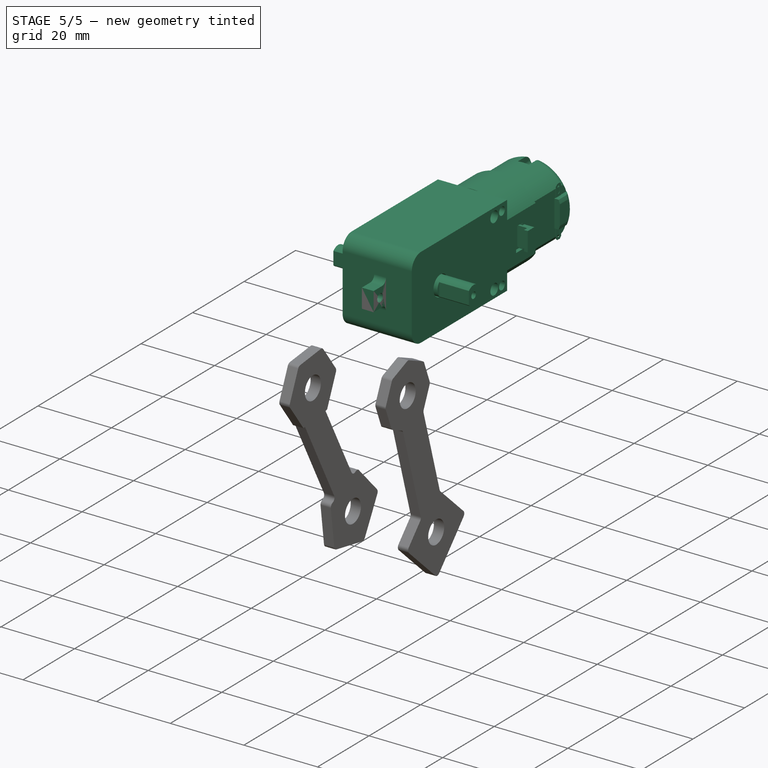
[diagram: stage 5 of 5 — iso view after this stage's code; geometry added in this stage tinted green]
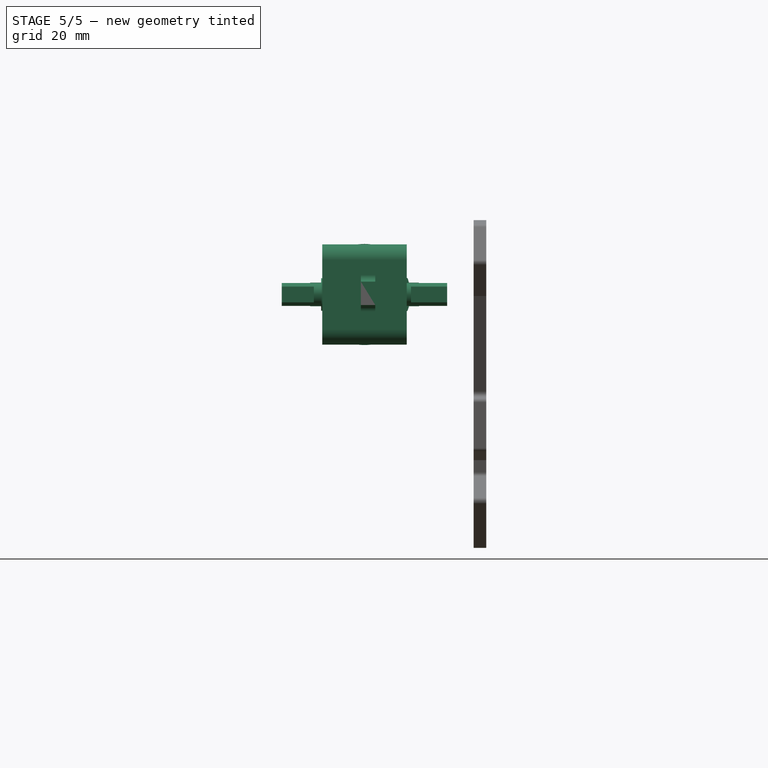
[diagram: stage 5 of 5 — front view after this stage's code; geometry added in this stage tinted green]
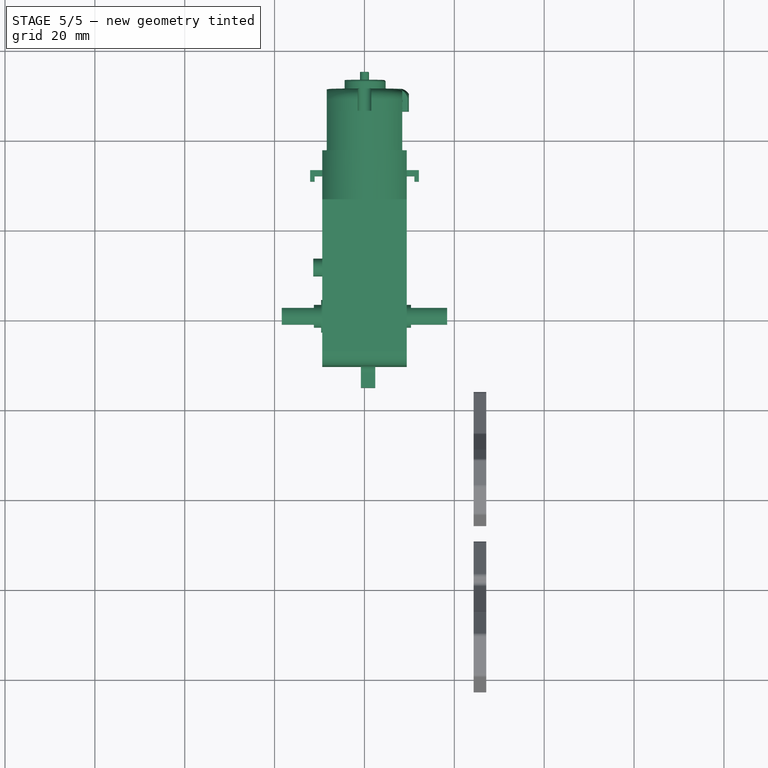
[diagram: stage 5 of 5 — top view after this stage's code; geometry added in this stage tinted green]
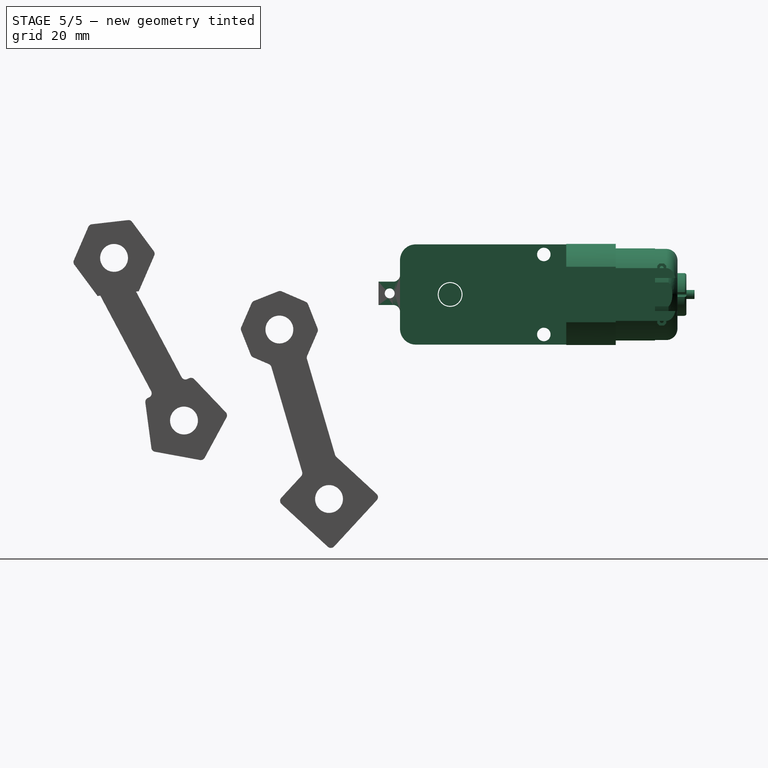
[diagram: stage 5 of 5 — right view after this stage's code; geometry added in this stage tinted green]
FEATURE [Part::Box] Box  label="Cube"
  AttacherType = Attacher::AttachEngine3D
  Height = 10
  Length = 10
  Placement = pos=(-5,-28.4,-5) rot=(0,0,1;0rad)
  Width = 10
FEATURE [Part::Box] Box001  label="Cube001"
  AttacherType = Attacher::AttachEngine3D
  Height = 10
  Length = 10
  Placement = pos=(-5,18.4,-5) rot=(0,0,1;0rad)
  Width = 10
FEATURE [Part::Feature] Compound001  label="motoreducteur"
  Placement = pos=(25.85,-9.4,11.15) rot=(-1,0,0;1.5708rad)
  shape: bbox 70.34 x 38.2 x 22.5 mm, 234 faces, 3 solids (baked)
FEATURE [Part::FeaturePython] Compound001_child0  label="motor_cap"  # WARN: FeaturePython — macro-defined, semantics opaque (R4)
  Base = -> Compound001
  FilterType = 1
  Invert = false
  OverrideMaxVal = 0
  Placement = pos=(0,0,0) rot=(0,0,1;1.5708rad)
  WindowFrom = 80
  WindowTo = 100
  items = 0
FEATURE [Part::FeaturePython] Compound001_child2  label="motor_body"  # WARN: FeaturePython — macro-defined, semantics opaque (R4)
  Base = -> Compound001
  FilterType = 1
  Invert = false
  OverrideMaxVal = 0
  Placement = pos=(0,0,0) rot=(0,0,1;1.5708rad)
  WindowFrom = 80
  WindowTo = 100
  items = 2
FEATURE [Part::Cut] Cut
  Base = -> Compound001_child1
  Tool = -> Box
FEATURE [Part::Cut] Cut001  label="motor_shaft001"
  Base = -> Cut
  Placement = pos=(0,0,0) rot=(0.57735,-0.57735,-0.57735;4.18879rad)
  Refine = true
  Tool = -> Box001
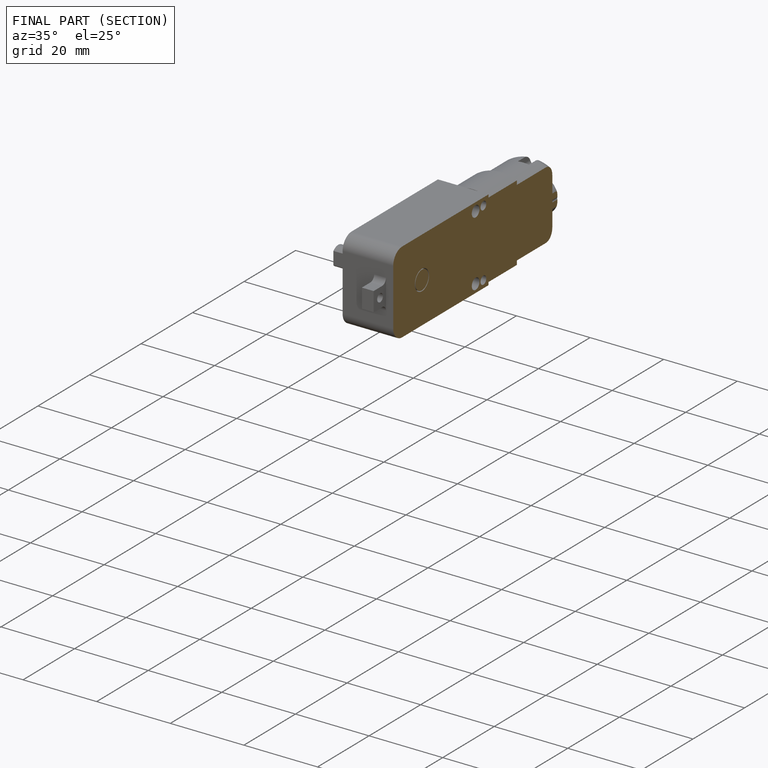
[diagram: finished part — half-section view (interior)]
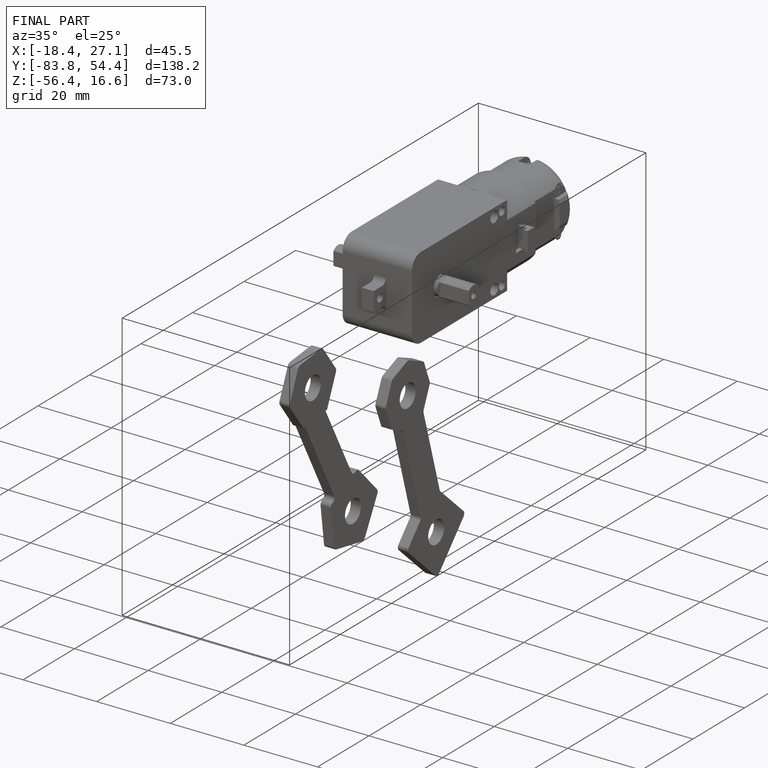
[diagram: finished part — iso view with bounding-box wireframe]
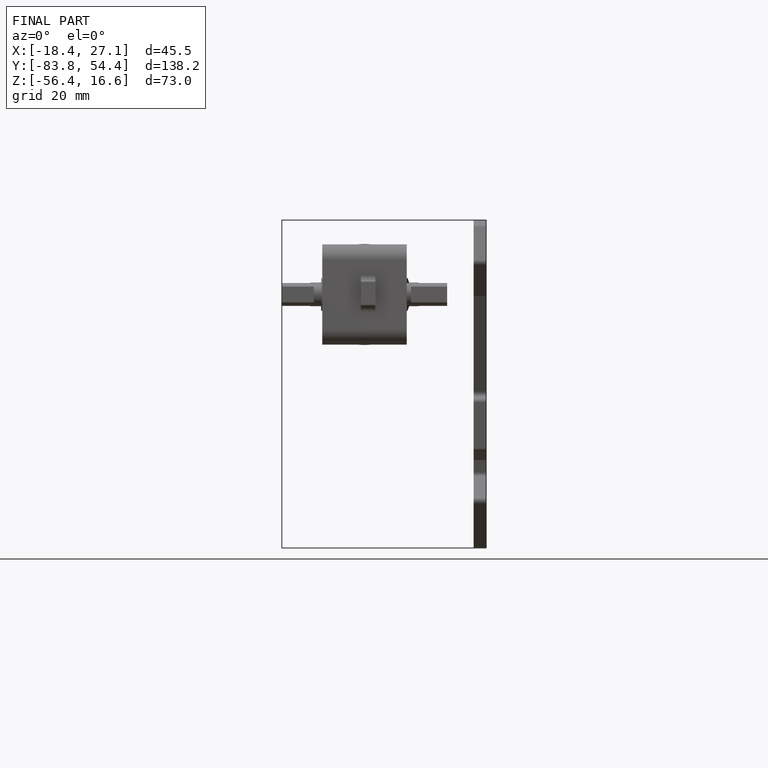
[diagram: finished part — front view with bounding-box wireframe]
